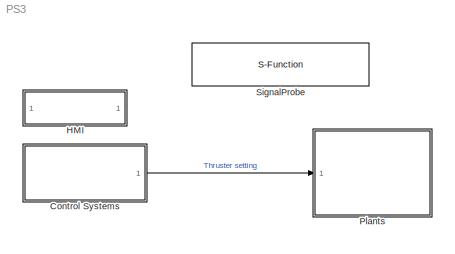
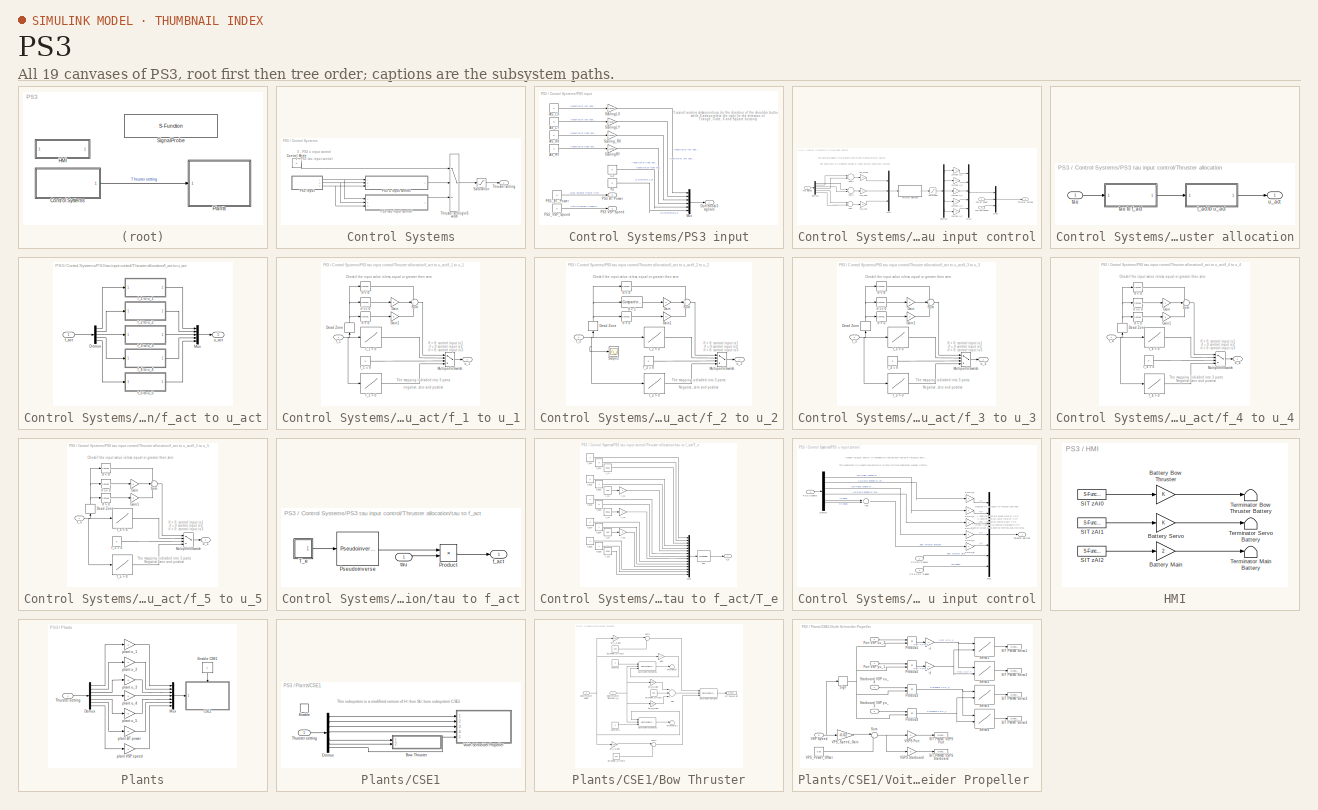
[diagram: thumbnail index - all 19 canvases of the model, root first then tree order]
MODEL PS3
KIND model
BLOCK [SubSystem] Control Systems
  FunctionWithSeparateData = off
  MaskHideContents = off
  MinAlgLoopOccurrences = off
  Opaque = off
  Ports = [0, 1]
  PropExecContextOutsideSubsystem = off
  RTWSystemCode = Auto
  RequestExecContextInheritance = off
BLOCK [Constant] Control Systems/Control Mode
  Value = 0
BLOCK [SubSystem] Control Systems/PS3 input
  FunctionWithSeparateData = off
  MaskHideContents = off
  MinAlgLoopOccurrences = off
  Opaque = off
  Ports = [0, 3]
  PropExecContextOutsideSubsystem = off
  RTWSystemCode = Auto
  RequestExecContextInheritance = off
BLOCK [Constant] Control Systems/PS3 input/AS_LX
  Value = 0
BLOCK [Constant] Control Systems/PS3 input/AS_LY
  Value = 0
BLOCK [Constant] Control Systems/PS3 input/AS_RX
  Value = 0
BLOCK [Constant] Control Systems/PS3 input/AS_RY
  Value = 0
BLOCK [Outport] Control Systems/PS3 input/DuelShock 3 signals
  IconDisplay = Port number
BLOCK [Constant] Control Systems/PS3 input/L2
  Value = 0
BLOCK [Mux] Control Systems/PS3 input/Mux
  DisplayOption = bar
  Inputs = 6
  Ports = [6, 1]
BLOCK [Outport] Control Systems/PS3 input/PS3 BT Power
  IconDisplay = Port number
  Port = 2
BLOCK [Outport] Control Systems/PS3 input/PS3 VSP Speed
  IconDisplay = Port number
  Port = 3
BLOCK [Constant] Control Systems/PS3 input/PS3_BT_Power
  Value = 0
BLOCK [Constant] Control Systems/PS3 input/PS3_VSP_Speed
  Value = 0
BLOCK [Constant] Control Systems/PS3 input/R2
  Value = 0
BLOCK [Gain] Control Systems/PS3 input/ScalingLX
  Gain = 1/32767
  OutDataTypeMode = Inherit via internal rule
  OutDataTypeStr = Inherit: Inherit via internal rule
  ParamDataTypeStr = Inherit: Inherit via internal rule
  ParameterDataTypeMode = Inherit via internal rule
  SaturateOnIntegerOverflow = off
BLOCK [Gain] Control Systems/PS3 input/ScalingLY
  Gain = 1/32767
  OutDataTypeMode = Inherit via internal rule
  OutDataTypeStr = Inherit: Inherit via internal rule
  ParamDataTypeStr = Inherit: Inherit via internal rule
  ParameterDataTypeMode = Inherit via internal rule
  SaturateOnIntegerOverflow = off
BLOCK [Gain] Control Systems/PS3 input/ScalingRY
  Gain = 1/32767
  OutDataTypeMode = Inherit via internal rule
  OutDataTypeStr = Inherit: Inherit via internal rule
  ParamDataTypeStr = Inherit: Inherit via internal rule
  ParameterDataTypeMode = Inherit via internal rule
  SaturateOnIntegerOverflow = off
BLOCK [Gain] Control Systems/PS3 input/Scaling_RX
  Gain = 1/32767
  OutDataTypeMode = Inherit via internal rule
  OutDataTypeStr = Inherit: Inherit via internal rule
  ParamDataTypeStr = Inherit: Inherit via internal rule
  ParameterDataTypeMode = Inherit via internal rule
  SaturateOnIntegerOverflow = off
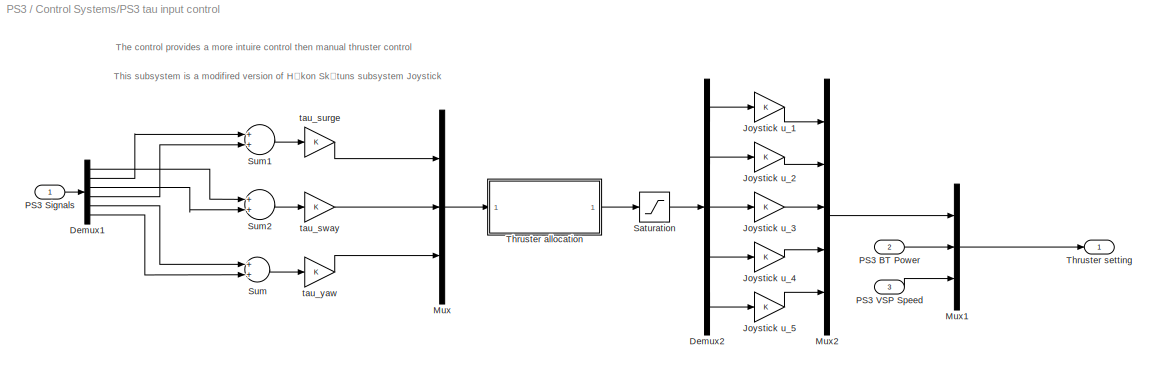
BLOCK [SubSystem] Control Systems/PS3 tau input control
  FunctionWithSeparateData = off
  MaskHideContents = off
  MinAlgLoopOccurrences = on
  Opaque = off
  Ports = [3, 1]
  PropExecContextOutsideSubsystem = off
  RTWSystemCode = Auto
  RequestExecContextInheritance = off
BLOCK [Demux] Control Systems/PS3 tau input control/Demux1
  DisplayOption = bar
  Outputs = 6
  Ports = [1, 6]
BLOCK [Demux] Control Systems/PS3 tau input control/Demux2
  DisplayOption = bar
  Outputs = 5
  Ports = [1, 5]
BLOCK [Gain] Control Systems/PS3 tau input control/Joystick u_1
  OutDataType = fixdt(1, 16)
  OutDataTypeMode = Inherit via internal rule
  OutDataTypeStr = Inherit: Inherit via internal rule
  OutScaling = 2^0
  ParamDataTypeStr = Inherit: Inherit via internal rule
  ParameterDataType = fixdt(1, 16)
  ParameterDataTypeMode = Inherit via internal rule
  ParameterScaling = 2^0
  SaturateOnIntegerOverflow = off
BLOCK [Gain] Control Systems/PS3 tau input control/Joystick u_2
  OutDataType = fixdt(1, 16)
  OutDataTypeMode = Inherit via internal rule
  OutDataTypeStr = Inherit: Inherit via internal rule
  OutScaling = 2^0
  ParamDataTypeStr = Inherit: Inherit via internal rule
  ParameterDataType = fixdt(1, 16)
  ParameterDataTypeMode = Inherit via internal rule
  ParameterScaling = 2^0
  SaturateOnIntegerOverflow = off
BLOCK [Gain] Control Systems/PS3 tau input control/Joystick u_3
  OutDataType = fixdt(1, 16)
  OutDataTypeMode = Inherit via internal rule
  OutDataTypeStr = Inherit: Inherit via internal rule
  OutScaling = 2^0
  ParamDataTypeStr = Inherit: Inherit via internal rule
  ParameterDataType = fixdt(1, 16)
  ParameterDataTypeMode = Inherit via internal rule
  ParameterScaling = 2^0
  SaturateOnIntegerOverflow = off
BLOCK [Gain] Control Systems/PS3 tau input control/Joystick u_4
  OutDataType = fixdt(1, 16)
  OutDataTypeMode = Inherit via internal rule
  OutDataTypeStr = Inherit: Inherit via internal rule
  OutScaling = 2^0
  ParamDataTypeStr = Inherit: Inherit via internal rule
  ParameterDataType = fixdt(1, 16)
  ParameterDataTypeMode = Inherit via internal rule
  ParameterScaling = 2^0
  SaturateOnIntegerOverflow = off
BLOCK [Gain] Control Systems/PS3 tau input control/Joystick u_5
  OutDataType = fixdt(1, 16)
  OutDataTypeMode = Inherit via internal rule
  OutDataTypeStr = Inherit: Inherit via internal rule
  OutScaling = 2^0
  ParamDataTypeStr = Inherit: Inherit via internal rule
  ParameterDataType = fixdt(1, 16)
  ParameterDataTypeMode = Inherit via internal rule
  ParameterScaling = 2^0
  SaturateOnIntegerOverflow = off
BLOCK [Mux] Control Systems/PS3 tau input control/Mux
  DisplayOption = bar
  Inputs = 3
  Ports = [3, 1]
BLOCK [Mux] Control Systems/PS3 tau input control/Mux1
  DisplayOption = bar
  Inputs = 3
  Ports = [3, 1]
BLOCK [Mux] Control Systems/PS3 tau input control/Mux2
  DisplayOption = bar
  Inputs = 5
  Ports = [5, 1]
BLOCK [Inport] Control Systems/PS3 tau input control/PS3 BT Power
  IconDisplay = Port number
  Port = 2
BLOCK [Inport] Control Systems/PS3 tau input control/PS3 Signals
  IconDisplay = Port number
BLOCK [Inport] Control Systems/PS3 tau input control/PS3 VSP Speed
  IconDisplay = Port number
  Port = 3
BLOCK [Saturate] Control Systems/PS3 tau input control/Saturation
  LowerLimit = -1.0
  UpperLimit = 1.0
BLOCK [Sum] Control Systems/PS3 tau input control/Sum
  InputSameDT = off
  OutDataTypeMode = Inherit via internal rule
  OutDataTypeStr = Inherit: Inherit via internal rule
  Ports = [2, 1]
  SaturateOnIntegerOverflow = off
BLOCK [Sum] Control Systems/PS3 tau input control/Sum1
  InputSameDT = off
  OutDataTypeMode = Inherit via internal rule
  OutDataTypeStr = Inherit: Inherit via internal rule
  Ports = [2, 1]
  SaturateOnIntegerOverflow = off
BLOCK [Sum] Control Systems/PS3 tau input control/Sum2
  InputSameDT = off
  OutDataTypeMode = Inherit via internal rule
  OutDataTypeStr = Inherit: Inherit via internal rule
  Ports = [2, 1]
  SaturateOnIntegerOverflow = off
BLOCK [SubSystem] Control Systems/PS3 tau input control/Thruster allocation
  FunctionWithSeparateData = off
  MaskHideContents = off
  MinAlgLoopOccurrences = off
  Opaque = off
  Ports = [1, 1]
  PropExecContextOutsideSubsystem = off
  RTWSystemCode = Auto
  RequestExecContextInheritance = off
BLOCK [SubSystem] Control Systems/PS3 tau input control/Thruster allocation/f_act to u_act
  FunctionWithSeparateData = off
  MaskHideContents = off
  MinAlgLoopOccurrences = off
  Opaque = off
  Ports = [1, 1]
  PropExecContextOutsideSubsystem = off
  RTWSystemCode = Auto
  RequestExecContextInheritance = off
BLOCK [Demux] Control Systems/PS3 tau input control/Thruster allocation/f_act to u_act/Demux
  DisplayOption = bar
  Outputs = 5
  Ports = [1, 5]
BLOCK [Mux] Control Systems/PS3 tau input control/Thruster allocation/f_act to u_act/Mux
  DisplayOption = bar
  Inputs = 5
  Ports = [5, 1]
BLOCK [SubSystem] Control Systems/PS3 tau input control/Thruster allocation/f_act to u_act/f_1 to u_1
  FunctionWithSeparateData = off
  MaskHideContents = off
  MinAlgLoopOccurrences = off
  Opaque = off
  Ports = [1, 1]
  PropExecContextOutsideSubsystem = off
  RTWSystemCode = Auto
  RequestExecContextInheritance = off
BLOCK [DeadZone] Control Systems/PS3 tau input control/Thruster allocation/f_act to u_act/f_1 to u_1/Dead Zone
  LowerValue = -0.001
  UpperValue = 0.001
BLOCK [Gain] Control Systems/PS3 tau input control/Thruster allocation/f_act to u_act/f_1 to u_1/Gain
  Gain = 2
  OutDataType = fixdt(1, 16)
  OutDataTypeMode = Inherit via internal rule
  OutDataTypeStr = Inherit: Inherit via internal rule
  OutScaling = 2^0
  ParamDataTypeStr = Inherit: Inherit via internal rule
  ParameterDataType = fixdt(1, 16)
  ParameterDataTypeMode = Inherit via internal rule
  ParameterScaling = 2^0
  SaturateOnIntegerOverflow = off
BLOCK [Gain] Control Systems/PS3 tau input control/Thruster allocation/f_act to u_act/f_1 to u_1/Gain1
  Gain = 3
  OutDataType = fixdt(1, 16)
  OutDataTypeMode = Inherit via internal rule
  OutDataTypeStr = Inherit: Inherit via internal rule
  OutScaling = 2^0
  ParamDataTypeStr = Inherit: Inherit via internal rule
  ParameterDataType = fixdt(1, 16)
  ParameterDataTypeMode = Inherit via internal rule
  ParameterScaling = 2^0
  SaturateOnIntegerOverflow = off
BLOCK [Reference] Control Systems/PS3 tau input control/Thruster allocation/f_act to u_act/f_1 to u_1/If < 0  REF=simulink/Logic and Bit\nOperations/Compare\nTo Constant
  FunctionWithSeparateData = off
  LogicOutDataTypeMode = uint8
  Ports = [1, 1]
  RTWMemSecDataConstants = Inherit from model
  RTWMemSecDataInternal = Inherit from model
  RTWMemSecDataParameters = Inherit from model
  RTWMemSecFuncExecute = Inherit from model
  RTWMemSecFuncInitTerm = Inherit from model
  ShowPortLabels = FromPortIcon
  SourceBlock = simulink/Logic and Bit\nOperations/Compare\nTo Constant
  SourceType = Compare To Constant
  SystemSampleTime = -1
  ZeroCross = on
  const = 0
  relop = <
BLOCK [Reference] Control Systems/PS3 tau input control/Thruster allocation/f_act to u_act/f_1 to u_1/If > 0  REF=simulink/Logic and Bit\nOperations/Compare\nTo Constant
  FunctionWithSeparateData = off
  LogicOutDataTypeMode = uint8
  Ports = [1, 1]
  RTWMemSecDataConstants = Inherit from model
  RTWMemSecDataInternal = Inherit from model
  RTWMemSecDataParameters = Inherit from model
  RTWMemSecFuncExecute = Inherit from model
  RTWMemSecFuncInitTerm = Inherit from model
  ShowPortLabels = FromPortIcon
  SourceBlock = simulink/Logic and Bit\nOperations/Compare\nTo Constant
  SourceType = Compare To Constant
  SystemSampleTime = -1
  ZeroCross = on
  const = 0
  relop = >
BLOCK [MultiPortSwitch] Control Systems/PS3 tau input control/Thruster allocation/f_act to u_act/f_1 to u_1/Multiport\nSwitch
  InputSameDT = off
  OutDataType = fixdt(1, 16)
  OutScaling = 2^0
  Ports = [4, 1]
  SaturateOnIntegerOverflow = off
BLOCK [Sum] Control Systems/PS3 tau input control/Thruster allocation/f_act to u_act/f_1 to u_1/Sum
  IconShape = round
  InputSameDT = off
  Inputs = +++
  OutDataType = fixdt(1, 16)
  OutDataTypeMode = Inherit via internal rule
  OutDataTypeStr = Inherit: Inherit via internal rule
  OutScaling = 2^0
  Ports = [3, 1]
  SaturateOnIntegerOverflow = off
BLOCK [Inport] Control Systems/PS3 tau input control/Thruster allocation/f_act to u_act/f_1 to u_1/f_1
  IconDisplay = Port number
BLOCK [Lookup] Control Systems/PS3 tau input control/Thruster allocation/f_act to u_act/f_1 to u_1/f_1 < 0
  InputValues = [-1.324\n-1.169\n-0.919\n-0.703\n-0.535\n-0.292\n-0.165\n-0.060\n0]
  LookUpMeth = Interpolation-Use End Values
  OutDataType = fixdt(1, 16)
  OutScaling = 2^0
  SaturateOnIntegerOverflow = off
  Table = [-1.0000\n   -0.9000\n   -0.8000\n   -0.7000\n   -0.6000\n   -0.5000\n   -0.4000\n   -0.3000\n   -0.2089]
BLOCK [Constant] Control Systems/PS3 tau input control/Thruster allocation/f_act to u_act/f_1 to u_1/f_1 = 0
  OutDataType = fixdt(1, 16)
  OutScaling = 2^0
  Value = 0
BLOCK [Lookup] Control Systems/PS3 tau input control/Thruster allocation/f_act to u_act/f_1 to u_1/f_1 > 0
  InputValues = [0\n    0.0510\n    0.1530\n    0.3080\n    0.4800\n    0.6630\n    0.9110\n    1.0570\n    1.2210\n    1.3740]
  LookUpMeth = Interpolation-Use End Values
  OutDataType = fixdt(1, 16)
  OutScaling = 2^0
  SaturateOnIntegerOverflow = off
  Table = [0.0500\n    0.1000\n    0.2000\n    0.3000\n    0.4000\n    0.5000\n    0.6000\n    0.7000\n    0.8000\n    0.9000]
BLOCK [Reference] Control Systems/PS3 tau input control/Thruster allocation/f_act to u_act/f_1 to u_1/if == 0  REF=simulink/Logic and Bit\nOperations/Compare\nTo Zero
  FunctionWithSeparateData = off
  LogicOutDataTypeMode = uint8
  Ports = [1, 1]
  RTWMemSecDataConstants = Inherit from model
  RTWMemSecDataInternal = Inherit from model
  RTWMemSecDataParameters = Inherit from model
  RTWMemSecFuncExecute = Inherit from model
  RTWMemSecFuncInitTerm = Inherit from model
  ShowPortLabels = FromPortIcon
  SourceBlock = simulink/Logic and Bit\nOperations/Compare\nTo Zero
  SourceType = Compare To Zero
  SystemSampleTime = -1
  ZeroCross = on
  relop = ==
BLOCK [Outport] Control Systems/PS3 tau input control/Thruster allocation/f_act to u_act/f_1 to u_1/u_1
  IconDisplay = Port number
BLOCK [SubSystem] Control Systems/PS3 tau input control/Thruster allocation/f_act to u_act/f_2 to u_2
  FunctionWithSeparateData = off
  MaskHideContents = off
  MinAlgLoopOccurrences = off
  Opaque = off
  Ports = [1, 1]
  PropExecContextOutsideSubsystem = off
  RTWSystemCode = Auto
  RequestExecContextInheritance = off
BLOCK [DeadZone] Control Systems/PS3 tau input control/Thruster allocation/f_act to u_act/f_2 to u_2/Dead Zone
  LowerValue = -0.001
  UpperValue = 0.001
BLOCK [Gain] Control Systems/PS3 tau input control/Thruster allocation/f_act to u_act/f_2 to u_2/Gain
  Gain = 2
  OutDataType = fixdt(1, 16)
  OutDataTypeMode = Inherit via internal rule
  OutDataTypeStr = Inherit: Inherit via internal rule
  OutScaling = 2^0
  ParamDataTypeStr = Inherit: Inherit via internal rule
  ParameterDataType = fixdt(1, 16)
  ParameterDataTypeMode = Inherit via internal rule
  ParameterScaling = 2^0
  SaturateOnIntegerOverflow = off
BLOCK [Gain] Control Systems/PS3 tau input control/Thruster allocation/f_act to u_act/f_2 to u_2/Gain1
  Gain = 3
  OutDataType = fixdt(1, 16)
  OutDataTypeMode = Inherit via internal rule
  OutDataTypeStr = Inherit: Inherit via internal rule
  OutScaling = 2^0
  ParamDataTypeStr = Inherit: Inherit via internal rule
  ParameterDataType = fixdt(1, 16)
  ParameterDataTypeMode = Inherit via internal rule
  ParameterScaling = 2^0
  SaturateOnIntegerOverflow = off
BLOCK [Reference] Control Systems/PS3 tau input control/Thruster allocation/f_act to u_act/f_2 to u_2/If < 0  REF=simulink/Logic and Bit\nOperations/Compare\nTo Constant
  FunctionWithSeparateData = off
  LogicOutDataTypeMode = uint8
  Ports = [1, 1]
  RTWMemSecDataConstants = Inherit from model
  RTWMemSecDataInternal = Inherit from model
  RTWMemSecDataParameters = Inherit from model
  RTWMemSecFuncExecute = Inherit from model
  RTWMemSecFuncInitTerm = Inherit from model
  ShowPortLabels = FromPortIcon
  SourceBlock = simulink/Logic and Bit\nOperations/Compare\nTo Constant
  SourceType = Compare To Constant
  SystemSampleTime = -1
  ZeroCross = on
  const = 0
  relop = <
BLOCK [Reference] Control Systems/PS3 tau input control/Thruster allocation/f_act to u_act/f_2 to u_2/If < 1  REF=simulink/Logic and Bit\nOperations/Compare\nTo Constant
  FunctionWithSeparateData = off
  LogicOutDataTypeMode = uint8
  Ports = [1, 1]
  RTWMemSecDataConstants = Inherit from model
  RTWMemSecDataInternal = Inherit from model
  RTWMemSecDataParameters = Inherit from model
  RTWMemSecFuncExecute = Inherit from model
  RTWMemSecFuncInitTerm = Inherit from model
  ShowPortLabels = FromPortIcon
  SourceBlock = simulink/Logic and Bit\nOperations/Compare\nTo Constant
  SourceType = Compare To Constant
  SystemSampleTime = -1
  ZeroCross = on
  const = 0
  relop = ==
BLOCK [Reference] Control Systems/PS3 tau input control/Thruster allocation/f_act to u_act/f_2 to u_2/If > 0  REF=simulink/Logic and Bit\nOperations/Compare\nTo Constant
  FunctionWithSeparateData = off
  LogicOutDataTypeMode = uint8
  Ports = [1, 1]
  RTWMemSecDataConstants = Inherit from model
  RTWMemSecDataInternal = Inherit from model
  RTWMemSecDataParameters = Inherit from model
  RTWMemSecFuncExecute = Inherit from model
  RTWMemSecFuncInitTerm = Inherit from model
  ShowPortLabels = FromPortIcon
  SourceBlock = simulink/Logic and Bit\nOperations/Compare\nTo Constant
  SourceType = Compare To Constant
  SystemSampleTime = -1
  ZeroCross = on
  const = 0
  relop = >
BLOCK [MultiPortSwitch] Control Systems/PS3 tau input control/Thruster allocation/f_act to u_act/f_2 to u_2/Multiport\nSwitch
  InputSameDT = off
  OutDataType = fixdt(1, 16)
  OutScaling = 2^0
  Ports = [4, 1]
  SaturateOnIntegerOverflow = off
BLOCK [Scope] Control Systems/PS3 tau input control/Thruster allocation/f_act to u_act/f_2 to u_2/Scope2
  DataFormat = StructureWithTime
  Floating = off
  NumInputPorts = 1
  Ports = [1]
  SampleTime = 0
  SaveName = ScopeData7
BLOCK [Sum] Control Systems/PS3 tau input control/Thruster allocation/f_act to u_act/f_2 to u_2/Sum
  IconShape = round
  InputSameDT = off
  Inputs = +++
  OutDataType = fixdt(1, 16)
  OutDataTypeMode = Inherit via internal rule
  OutDataTypeStr = Inherit: Inherit via internal rule
  OutScaling = 2^0
  Ports = [3, 1]
  SaturateOnIntegerOverflow = off
BLOCK [Inport] Control Systems/PS3 tau input control/Thruster allocation/f_act to u_act/f_2 to u_2/f_2
  IconDisplay = Port number
BLOCK [Lookup] Control Systems/PS3 tau input control/Thruster allocation/f_act to u_act/f_2 to u_2/f_2 < 0
  InputValues = [-0.766\n-0.649\n-0.522\n-0.411\n-0.323\n-0.246\n-0.156\n-0.075\n-0.018\n-0.006\n0]
  LookUpMeth = Interpolation-Use End Values
  OutDataType = fixdt(1, 16)
  OutScaling = 2^0
  SaturateOnIntegerOverflow = off
  Table = [-1.0000\n   -0.9000\n   -0.8000\n   -0.7000\n   -0.6000\n   -0.5000\n   -0.4000\n   -0.3000\n   -0.2000\n   -0.1000\n   -0.0466]
BLOCK [Constant] Control Systems/PS3 tau input control/Thruster allocation/f_act to u_act/f_2 to u_2/f_2 = 0
  OutDataType = fixdt(1, 16)
  OutScaling = 2^0
  Value = 0
BLOCK [Lookup] Control Systems/PS3 tau input control/Thruster allocation/f_act to u_act/f_2 to u_2/f_2 > 0
  InputValues = [0.000\n0.052\n0.207\n0.331\n0.509\n0.689\n0.829\n0.961\n1.079\n1.120\n]
  LookUpMeth = Interpolation-Use End Values
  OutDataType = fixdt(1, 16)
  OutScaling = 2^0
  SaturateOnIntegerOverflow = off
  Table = [0.1665\n    0.2000\n    0.3000\n    0.4000\n    0.5000\n    0.6000\n    0.7000\n    0.8000\n    0.9000\n    1.0000]
BLOCK [Outport] Control Systems/PS3 tau input control/Thruster allocation/f_act to u_act/f_2 to u_2/u_2
  IconDisplay = Port number
BLOCK [SubSystem] Control Systems/PS3 tau input control/Thruster allocation/f_act to u_act/f_3 to u_3
  FunctionWithSeparateData = off
  MaskHideContents = off
  MinAlgLoopOccurrences = off
  Opaque = off
  Ports = [1, 1]
  PropExecContextOutsideSubsystem = off
  RTWSystemCode = Auto
  RequestExecContextInheritance = off
BLOCK [DeadZone] Control Systems/PS3 tau input control/Thruster allocation/f_act to u_act/f_3 to u_3/Dead Zone
  LowerValue = -0.001
  UpperValue = 0.001
BLOCK [Gain] Control Systems/PS3 tau input control/Thruster allocation/f_act to u_act/f_3 to u_3/Gain
  Gain = 2
  OutDataType = fixdt(1, 16)
  OutDataTypeMode = Inherit via internal rule
  OutDataTypeStr = Inherit: Inherit via internal rule
  OutScaling = 2^0
  ParamDataTypeStr = Inherit: Inherit via internal rule
  ParameterDataType = fixdt(1, 16)
  ParameterDataTypeMode = Inherit via internal rule
  ParameterScaling = 2^0
  SaturateOnIntegerOverflow = off
BLOCK [Gain] Control Systems/PS3 tau input control/Thruster allocation/f_act to u_act/f_3 to u_3/Gain1
  Gain = 3
  OutDataType = fixdt(1, 16)
  OutDataTypeMode = Inherit via internal rule
  OutDataTypeStr = Inherit: Inherit via internal rule
  OutScaling = 2^0
  ParamDataTypeStr = Inherit: Inherit via internal rule
  ParameterDataType = fixdt(1, 16)
  ParameterDataTypeMode = Inherit via internal rule
  ParameterScaling = 2^0
  SaturateOnIntegerOverflow = off
BLOCK [Reference] Control Systems/PS3 tau input control/Thruster allocation/f_act to u_act/f_3 to u_3/If < 0  REF=simulink/Logic and Bit\nOperations/Compare\nTo Constant
  FunctionWithSeparateData = off
  LogicOutDataTypeMode = uint8
  Ports = [1, 1]
  RTWMemSecDataConstants = Inherit from model
  RTWMemSecDataInternal = Inherit from model
  RTWMemSecDataParameters = Inherit from model
  RTWMemSecFuncExecute = Inherit from model
  RTWMemSecFuncInitTerm = Inherit from model
  ShowPortLabels = FromPortIcon
  SourceBlock = simulink/Logic and Bit\nOperations/Compare\nTo Constant
  SourceType = Compare To Constant
  SystemSampleTime = -1
  ZeroCross = on
  const = 0
  relop = <
BLOCK [Reference] Control Systems/PS3 tau input control/Thruster allocation/f_act to u_act/f_3 to u_3/If > 0  REF=simulink/Logic and Bit\nOperations/Compare\nTo Constant
  FunctionWithSeparateData = off
  LogicOutDataTypeMode = uint8
  Ports = [1, 1]
  RTWMemSecDataConstants = Inherit from model
  RTWMemSecDataInternal = Inherit from model
  RTWMemSecDataParameters = Inherit from model
  RTWMemSecFuncExecute = Inherit from model
  RTWMemSecFuncInitTerm = Inherit from model
  ShowPortLabels = FromPortIcon
  SourceBlock = simulink/Logic and Bit\nOperations/Compare\nTo Constant
  SourceType = Compare To Constant
  SystemSampleTime = -1
  ZeroCross = on
  const = 0
  relop = >
BLOCK [MultiPortSwitch] Control Systems/PS3 tau input control/Thruster allocation/f_act to u_act/f_3 to u_3/Multiport\nSwitch
  InputSameDT = off
  OutDataType = fixdt(1, 16)
  OutScaling = 2^0
  Ports = [4, 1]
  SaturateOnIntegerOverflow = off
BLOCK [Sum] Control Systems/PS3 tau input control/Thruster allocation/f_act to u_act/f_3 to u_3/Sum
  IconShape = round
  InputSameDT = off
  Inputs = +++
  OutDataType = fixdt(1, 16)
  OutDataTypeMode = Inherit via internal rule
  OutDataTypeStr = Inherit: Inherit via internal rule
  OutScaling = 2^0
  Ports = [3, 1]
  SaturateOnIntegerOverflow = off
BLOCK [Inport] Control Systems/PS3 tau input control/Thruster allocation/f_act to u_act/f_3 to u_3/f_3
  IconDisplay = Port number
BLOCK [Lookup] Control Systems/PS3 tau input control/Thruster allocation/f_act to u_act/f_3 to u_3/f_3 < 0
  InputValues = [-1.291\n-1.088\n-0.885\n-0.618\n-0.403\n-0.211\n-0.034\n0.000]
  LookUpMeth = Interpolation-Use End Values
  OutDataType = fixdt(1, 16)
  OutScaling = 2^0
  SaturateOnIntegerOverflow = off
  Table = [-0.9000\n   -0.8000\n   -0.7000\n   -0.6000\n   -0.5000\n   -0.4000\n   -0.3000\n   -0.2809]
BLOCK [Constant] Control Systems/PS3 tau input control/Thruster allocation/f_act to u_act/f_3 to u_3/f_3 = 0
  OutDataType = fixdt(1, 16)
  OutScaling = 2^0
  Value = 0
BLOCK [Lookup] Control Systems/PS3 tau input control/Thruster allocation/f_act to u_act/f_3 to u_3/f_3 > 0
  InputValues = [0.000\n0.014\n0.040\n0.147\n0.302\n0.494\n0.680\n0.968\n1.111\n1.289\n1.339]
  LookUpMeth = Interpolation-Use End Values
  OutDataType = fixdt(1, 16)
  OutScaling = 2^0
  SaturateOnIntegerOverflow = off
  Table = [0.0452\n    0.1000\n    0.2000\n    0.3000\n    0.4000\n    0.5000\n    0.6000\n    0.7000\n    0.8000\n    0.9000\n    1.0000\n]
BLOCK [Reference] Control Systems/PS3 tau input control/Thruster allocation/f_act to u_act/f_3 to u_3/if == 0  REF=simulink/Logic and Bit\nOperations/Compare\nTo Zero
  FunctionWithSeparateData = off
  LogicOutDataTypeMode = uint8
  Ports = [1, 1]
  RTWMemSecDataConstants = Inherit from model
  RTWMemSecDataInternal = Inherit from model
  RTWMemSecDataParameters = Inherit from model
  RTWMemSecFuncExecute = Inherit from model
  RTWMemSecFuncInitTerm = Inherit from model
  ShowPortLabels = FromPortIcon
  SourceBlock = simulink/Logic and Bit\nOperations/Compare\nTo Zero
  SourceType = Compare To Zero
  SystemSampleTime = -1
  ZeroCross = on
  relop = ==
BLOCK [Outport] Control Systems/PS3 tau input control/Thruster allocation/f_act to u_act/f_3 to u_3/u_3
  IconDisplay = Port number
BLOCK [SubSystem] Control Systems/PS3 tau input control/Thruster allocation/f_act to u_act/f_4 to u_4
  FunctionWithSeparateData = off
  MaskHideContents = off
  MinAlgLoopOccurrences = off
  Opaque = off
  Ports = [1, 1]
  PropExecContextOutsideSubsystem = off
  RTWSystemCode = Auto
  RequestExecContextInheritance = off
BLOCK [DeadZone] Control Systems/PS3 tau input control/Thruster allocation/f_act to u_act/f_4 to u_4/Dead Zone
  LowerValue = -0.001
  UpperValue = 0.001
BLOCK [Gain] Control Systems/PS3 tau input control/Thruster allocation/f_act to u_act/f_4 to u_4/Gain
  Gain = 2
  OutDataType = fixdt(1, 16)
  OutDataTypeMode = Inherit via internal rule
  OutDataTypeStr = Inherit: Inherit via internal rule
  OutScaling = 2^0
  ParamDataTypeStr = Inherit: Inherit via internal rule
  ParameterDataType = fixdt(1, 16)
  ParameterDataTypeMode = Inherit via internal rule
  ParameterScaling = 2^0
  SaturateOnIntegerOverflow = off
BLOCK [Gain] Control Systems/PS3 tau input control/Thruster allocation/f_act to u_act/f_4 to u_4/Gain1
  Gain = 3
  OutDataType = fixdt(1, 16)
  OutDataTypeMode = Inherit via internal rule
  OutDataTypeStr = Inherit: Inherit via internal rule
  OutScaling = 2^0
  ParamDataTypeStr = Inherit: Inherit via internal rule
  ParameterDataType = fixdt(1, 16)
  ParameterDataTypeMode = Inherit via internal rule
  ParameterScaling = 2^0
  SaturateOnIntegerOverflow = off
BLOCK [Reference] Control Systems/PS3 tau input control/Thruster allocation/f_act to u_act/f_4 to u_4/If < 0  REF=simulink/Logic and Bit\nOperations/Compare\nTo Constant
  FunctionWithSeparateData = off
  LogicOutDataTypeMode = uint8
  Ports = [1, 1]
  RTWMemSecDataConstants = Inherit from model
  RTWMemSecDataInternal = Inherit from model
  RTWMemSecDataParameters = Inherit from model
  RTWMemSecFuncExecute = Inherit from model
  RTWMemSecFuncInitTerm = Inherit from model
  ShowPortLabels = FromPortIcon
  SourceBlock = simulink/Logic and Bit\nOperations/Compare\nTo Constant
  SourceType = Compare To Constant
  SystemSampleTime = -1
  ZeroCross = on
  const = 0
  relop = <
BLOCK [Reference] Control Systems/PS3 tau input control/Thruster allocation/f_act to u_act/f_4 to u_4/If > 0  REF=simulink/Logic and Bit\nOperations/Compare\nTo Constant
  FunctionWithSeparateData = off
  LogicOutDataTypeMode = uint8
  Ports = [1, 1]
  RTWMemSecDataConstants = Inherit from model
  RTWMemSecDataInternal = Inherit from model
  RTWMemSecDataParameters = Inherit from model
  RTWMemSecFuncExecute = Inherit from model
  RTWMemSecFuncInitTerm = Inherit from model
  ShowPortLabels = FromPortIcon
  SourceBlock = simulink/Logic and Bit\nOperations/Compare\nTo Constant
  SourceType = Compare To Constant
  SystemSampleTime = -1
  ZeroCross = on
  const = 0
  relop = >
BLOCK [MultiPortSwitch] Control Systems/PS3 tau input control/Thruster allocation/f_act to u_act/f_4 to u_4/Multiport\nSwitch
  InputSameDT = off
  OutDataType = fixdt(1, 16)
  OutScaling = 2^0
  Ports = [4, 1]
  SaturateOnIntegerOverflow = off
BLOCK [Sum] Control Systems/PS3 tau input control/Thruster allocation/f_act to u_act/f_4 to u_4/Sum
  IconShape = round
  InputSameDT = off
  Inputs = +++
  OutDataType = fixdt(1, 16)
  OutDataTypeMode = Inherit via internal rule
  OutDataTypeStr = Inherit: Inherit via internal rule
  OutScaling = 2^0
  Ports = [3, 1]
  SaturateOnIntegerOverflow = off
BLOCK [Inport] Control Systems/PS3 tau input control/Thruster allocation/f_act to u_act/f_4 to u_4/f_4
  IconDisplay = Port number
BLOCK [Lookup] Control Systems/PS3 tau input control/Thruster allocation/f_act to u_act/f_4 to u_4/f_4 < 0
  InputValues = [-1.249\n-1.225\n-1.094\n-0.896\n-0.696\n-0.502\n-0.314\n-0.169\n-0.042\n0.000]
  LookUpMeth = Interpolation-Use End Values
  OutDataType = fixdt(1, 16)
  OutScaling = 2^0
  SaturateOnIntegerOverflow = off
  Table = [-0.9000\n   -0.8000\n   -0.7000\n   -0.6000\n   -0.5000\n   -0.4000\n   -0.3000\n   -0.2000\n   -0.1000\n   -0.0674]
BLOCK [Constant] Control Systems/PS3 tau input control/Thruster allocation/f_act to u_act/f_4 to u_4/f_4 = 0
  OutDataType = fixdt(1, 16)
  OutScaling = 2^0
  Value = 0
BLOCK [Lookup] Control Systems/PS3 tau input control/Thruster allocation/f_act to u_act/f_4 to u_4/f_4 > 0
  InputValues = [0.000\n0.063\n0.107\n0.274\n0.441\n0.599\n0.731]
  LookUpMeth = Interpolation-Use End Values
  OutDataType = fixdt(1, 16)
  OutScaling = 2^0
  SaturateOnIntegerOverflow = off
  Table = [0.3588\n    0.5000\n    0.6000\n    0.7000\n    0.8000\n    0.9000\n    1.0000]
BLOCK [Reference] Control Systems/PS3 tau input control/Thruster allocation/f_act to u_act/f_4 to u_4/if == 0  REF=simulink/Logic and Bit\nOperations/Compare\nTo Zero
  FunctionWithSeparateData = off
  LogicOutDataTypeMode = uint8
  Ports = [1, 1]
  RTWMemSecDataConstants = Inherit from model
  RTWMemSecDataInternal = Inherit from model
  RTWMemSecDataParameters = Inherit from model
  RTWMemSecFuncExecute = Inherit from model
  RTWMemSecFuncInitTerm = Inherit from model
  ShowPortLabels = FromPortIcon
  SourceBlock = simulink/Logic and Bit\nOperations/Compare\nTo Zero
  SourceType = Compare To Zero
  SystemSampleTime = -1
  ZeroCross = on
  relop = ==
BLOCK [Outport] Control Systems/PS3 tau input control/Thruster allocation/f_act to u_act/f_4 to u_4/u_4
  IconDisplay = Port number
BLOCK [SubSystem] Control Systems/PS3 tau input control/Thruster allocation/f_act to u_act/f_5 to u_5
  FunctionWithSeparateData = off
  MaskHideContents = off
  MinAlgLoopOccurrences = off
  Opaque = off
  Ports = [1, 1]
  PropExecContextOutsideSubsystem = off
  RTWSystemCode = Auto
  RequestExecContextInheritance = off
BLOCK [DeadZone] Control Systems/PS3 tau input control/Thruster allocation/f_act to u_act/f_5 to u_5/Dead Zone
  LowerValue = -0.001
  UpperValue = 0.001
BLOCK [Gain] Control Systems/PS3 tau input control/Thruster allocation/f_act to u_act/f_5 to u_5/Gain
  Gain = 2
  OutDataType = fixdt(1, 16)
  OutDataTypeMode = Inherit via internal rule
  OutDataTypeStr = Inherit: Inherit via internal rule
  OutScaling = 2^0
  ParamDataTypeStr = Inherit: Inherit via internal rule
  ParameterDataType = fixdt(1, 16)
  ParameterDataTypeMode = Inherit via internal rule
  ParameterScaling = 2^0
  SaturateOnIntegerOverflow = off
BLOCK [Gain] Control Systems/PS3 tau input control/Thruster allocation/f_act to u_act/f_5 to u_5/Gain1
  Gain = 3
  OutDataType = fixdt(1, 16)
  OutDataTypeMode = Inherit via internal rule
  OutDataTypeStr = Inherit: Inherit via internal rule
  OutScaling = 2^0
  ParamDataTypeStr = Inherit: Inherit via internal rule
  ParameterDataType = fixdt(1, 16)
  ParameterDataTypeMode = Inherit via internal rule
  ParameterScaling = 2^0
  SaturateOnIntegerOverflow = off
BLOCK [Reference] Control Systems/PS3 tau input control/Thruster allocation/f_act to u_act/f_5 to u_5/If < 0  REF=simulink/Logic and Bit\nOperations/Compare\nTo Constant
  FunctionWithSeparateData = off
  LogicOutDataTypeMode = uint8
  Ports = [1, 1]
  RTWMemSecDataConstants = Inherit from model
  RTWMemSecDataInternal = Inherit from model
  RTWMemSecDataParameters = Inherit from model
  RTWMemSecFuncExecute = Inherit from model
  RTWMemSecFuncInitTerm = Inherit from model
  ShowPortLabels = FromPortIcon
  SourceBlock = simulink/Logic and Bit\nOperations/Compare\nTo Constant
  SourceType = Compare To Constant
  SystemSampleTime = -1
  ZeroCross = on
  const = 0
  relop = <
BLOCK [Reference] Control Systems/PS3 tau input control/Thruster allocation/f_act to u_act/f_5 to u_5/If > 0  REF=simulink/Logic and Bit\nOperations/Compare\nTo Constant
  FunctionWithSeparateData = off
  LogicOutDataTypeMode = uint8
  Ports = [1, 1]
  RTWMemSecDataConstants = Inherit from model
  RTWMemSecDataInternal = Inherit from model
  RTWMemSecDataParameters = Inherit from model
  RTWMemSecFuncExecute = Inherit from model
  RTWMemSecFuncInitTerm = Inherit from model
  ShowPortLabels = FromPortIcon
  SourceBlock = simulink/Logic and Bit\nOperations/Compare\nTo Constant
  SourceType = Compare To Constant
  SystemSampleTime = -1
  ZeroCross = on
  const = 0
  relop = >
BLOCK [MultiPortSwitch] Control Systems/PS3 tau input control/Thruster allocation/f_act to u_act/f_5 to u_5/Multiport\nSwitch
  InputSameDT = off
  OutDataType = fixdt(1, 16)
  OutScaling = 2^0
  Ports = [4, 1]
  SaturateOnIntegerOverflow = off
BLOCK [Sum] Control Systems/PS3 tau input control/Thruster allocation/f_act to u_act/f_5 to u_5/Sum
  IconShape = round
  InputSameDT = off
  Inputs = +++
  OutDataType = fixdt(1, 16)
  OutDataTypeMode = Inherit via internal rule
  OutDataTypeStr = Inherit: Inherit via internal rule
  OutScaling = 2^0
  Ports = [3, 1]
  SaturateOnIntegerOverflow = off
BLOCK [Inport] Control Systems/PS3 tau input control/Thruster allocation/f_act to u_act/f_5 to u_5/f_5
  IconDisplay = Port number
BLOCK [Lookup] Control Systems/PS3 tau input control/Thruster allocation/f_act to u_act/f_5 to u_5/f_5 < 0
  InputValues = [-1.2630\n   -1.0309\n   -0.3808]
  LookUpMeth = Interpolation-Use End Values
  OutDataType = fixdt(1, 16)
  OutScaling = 2^0
  SaturateOnIntegerOverflow = off
  Table = [-0.3000\n   -0.2000\n   -0.1000]
BLOCK [Constant] Control Systems/PS3 tau input control/Thruster allocation/f_act to u_act/f_5 to u_5/f_5 = 0
  OutDataType = fixdt(1, 16)
  OutScaling = 2^0
  Value = 0
BLOCK [Lookup] Control Systems/PS3 tau input control/Thruster allocation/f_act to u_act/f_5 to u_5/f_5 > 0
  InputValues = [0.3480\n    0.8290\n    1.0930]
  LookUpMeth = Interpolation-Use End Values
  OutDataType = fixdt(1, 16)
  OutScaling = 2^0
  SaturateOnIntegerOverflow = off
  Table = [0.1000\n    0.2000\n    0.3000]
BLOCK [Reference] Control Systems/PS3 tau input control/Thruster allocation/f_act to u_act/f_5 to u_5/if == 0  REF=simulink/Logic and Bit\nOperations/Compare\nTo Zero
  FunctionWithSeparateData = off
  LogicOutDataTypeMode = uint8
  Ports = [1, 1]
  RTWMemSecDataConstants = Inherit from model
  RTWMemSecDataInternal = Inherit from model
  RTWMemSecDataParameters = Inherit from model
  RTWMemSecFuncExecute = Inherit from model
  RTWMemSecFuncInitTerm = Inherit from model
  ShowPortLabels = FromPortIcon
  SourceBlock = simulink/Logic and Bit\nOperations/Compare\nTo Zero
  SourceType = Compare To Zero
  SystemSampleTime = -1
  ZeroCross = on
  relop = ==
BLOCK [Outport] Control Systems/PS3 tau input control/Thruster allocation/f_act to u_act/f_5 to u_5/u_5
  IconDisplay = Port number
BLOCK [Inport] Control Systems/PS3 tau input control/Thruster allocation/f_act to u_act/f_act
  IconDisplay = Port number
BLOCK [Outport] Control Systems/PS3 tau input control/Thruster allocation/f_act to u_act/u_act
  IconDisplay = Port number
BLOCK [Inport] Control Systems/PS3 tau input control/Thruster allocation/tau
  IconDisplay = Port number
BLOCK [SubSystem] Control Systems/PS3 tau input control/Thruster allocation/tau to f_act
  FunctionWithSeparateData = off
  MaskHideContents = off
  MinAlgLoopOccurrences = off
  Opaque = off
  Ports = [1, 1]
  PropExecContextOutsideSubsystem = off
  RTWSystemCode = Auto
  RequestExecContextInheritance = off
BLOCK [Product] Control Systems/PS3 tau input control/Thruster allocation/tau to f_act/Product
  InputSameDT = off
  Multiplication = Matrix(*)
  OutDataType = fixdt(1, 16)
  OutDataTypeMode = Inherit via internal rule
  OutDataTypeStr = Inherit: Inherit via internal rule
  OutScaling = 2^0
  Ports = [2, 1]
  SaturateOnIntegerOverflow = off
BLOCK [Reference] Control Systems/PS3 tau input control/Thruster allocation/tau to f_act/Pseudoinverse  REF=dspinverses/Pseudoinverse
  Ports = [1, 1]
  SourceBlock = dspinverses/Pseudoinverse
  SourceType = Pseudoinverse
  wanterr = off
BLOCK [SubSystem] Control Systems/PS3 tau input control/Thruster allocation/tau to f_act/T_e
  FunctionWithSeparateData = off
  MaskHideContents = off
  MinAlgLoopOccurrences = off
  Opaque = off
  Ports = [0, 1]
  PropExecContextOutsideSubsystem = off
  RTWSystemCode = Auto
  RequestExecContextInheritance = off
BLOCK [Gain] Control Systems/PS3 tau input control/Thruster allocation/tau to f_act/T_e/-l_x1
  Gain = -1
  OutDataTypeMode = Inherit via internal rule
  OutDataTypeStr = Inherit: Inherit via internal rule
  ParamDataTypeStr = Inherit: Inherit via internal rule
  ParameterDataTypeMode = Inherit via internal rule
  SaturateOnIntegerOverflow = off
BLOCK [Gain] Control Systems/PS3 tau input control/Thruster allocation/tau to f_act/T_e/-l_x2
  Gain = -1
  OutDataTypeMode = Inherit via internal rule
  OutDataTypeStr = Inherit: Inherit via internal rule
  ParamDataTypeStr = Inherit: Inherit via internal rule
  ParameterDataTypeMode = Inherit via internal rule
  SaturateOnIntegerOverflow = off
BLOCK [Gain] Control Systems/PS3 tau input control/Thruster allocation/tau to f_act/T_e/-l_y2
  Gain = -1
  OutDataTypeMode = Inherit via internal rule
  OutDataTypeStr = Inherit: Inherit via internal rule
  ParamDataTypeStr = Inherit: Inherit via internal rule
  ParameterDataTypeMode = Inherit via internal rule
  SaturateOnIntegerOverflow = off
BLOCK [Reshape] Control Systems/PS3 tau input control/Thruster allocation/tau to f_act/T_e/3x5
  OutputDimensionality = Customize
  OutputDimensions = [3,5]
  Ports = [1, 1]
BLOCK [Mux] Control Systems/PS3 tau input control/Thruster allocation/tau to f_act/T_e/Mux
  DisplayOption = bar
  Inputs = 15
  Ports = [15, 1]
BLOCK [Outport] Control Systems/PS3 tau input control/Thruster allocation/tau to f_act/T_e/T_e
  IconDisplay = Port number
BLOCK [Constant] Control Systems/PS3 tau input control/Thruster allocation/tau to f_act/T_e/T_e11
BLOCK [Constant] Control Systems/PS3 tau input control/Thruster allocation/tau to f_act/T_e/T_e12
  Value = 0
BLOCK [Constant] Control Systems/PS3 tau input control/Thruster allocation/tau to f_act/T_e/T_e13
BLOCK [Constant] Control Systems/PS3 tau input control/Thruster allocation/tau to f_act/T_e/T_e14
  Value = 0
BLOCK [Constant] Control Systems/PS3 tau input control/Thruster allocation/tau to f_act/T_e/T_e15
  Value = 0
BLOCK [Constant] Control Systems/PS3 tau input control/Thruster allocation/tau to f_act/T_e/T_e21
  Value = 0
BLOCK [Constant] Control Systems/PS3 tau input control/Thruster allocation/tau to f_act/T_e/T_e22
BLOCK [Constant] Control Systems/PS3 tau input control/Thruster allocation/tau to f_act/T_e/T_e23
  Value = 0
BLOCK [Constant] Control Systems/PS3 tau input control/Thruster allocation/tau to f_act/T_e/T_e24
BLOCK [Constant] Control Systems/PS3 tau input control/Thruster allocation/tau to f_act/T_e/T_e25
BLOCK [Constant] Control Systems/PS3 tau input control/Thruster allocation/tau to f_act/T_e/l_x1
  Value = 0.45
BLOCK [Constant] Control Systems/PS3 tau input control/Thruster allocation/tau to f_act/T_e/l_x2
  Value = 0.45
BLOCK [Constant] Control Systems/PS3 tau input control/Thruster allocation/tau to f_act/T_e/l_x3
  Value = 0.385
BLOCK [Constant] Control Systems/PS3 tau input control/Thruster allocation/tau to f_act/T_e/l_y1
  Value = 0.055
BLOCK [Constant] Control Systems/PS3 tau input control/Thruster allocation/tau to f_act/T_e/l_y2
  Value = 0.055
BLOCK [Outport] Control Systems/PS3 tau input control/Thruster allocation/tau to f_act/f_act
  IconDisplay = Port number
BLOCK [Inport] Control Systems/PS3 tau input control/Thruster allocation/tau to f_act/tau
  IconDisplay = Port number
BLOCK [Outport] Control Systems/PS3 tau input control/Thruster allocation/u_act
  IconDisplay = Port number
BLOCK [Outport] Control Systems/PS3 tau input control/Thruster setting
  IconDisplay = Port number
BLOCK [Gain] Control Systems/PS3 tau input control/tau_surge
  OutDataTypeMode = Inherit via internal rule
  OutDataTypeStr = Inherit: Inherit via internal rule
  ParamDataTypeStr = Inherit: Inherit via internal rule
  ParameterDataTypeMode = Inherit via internal rule
  SaturateOnIntegerOverflow = off
BLOCK [Gain] Control Systems/PS3 tau input control/tau_sway
  OutDataTypeMode = Inherit via internal rule
  OutDataTypeStr = Inherit: Inherit via internal rule
  ParamDataTypeStr = Inherit: Inherit via internal rule
  ParameterDataTypeMode = Inherit via internal rule
  SaturateOnIntegerOverflow = off
BLOCK [Gain] Control Systems/PS3 tau input control/tau_yaw
  OutDataTypeMode = Inherit via internal rule
  OutDataTypeStr = Inherit: Inherit via internal rule
  ParamDataTypeStr = Inherit: Inherit via internal rule
  ParameterDataTypeMode = Inherit via internal rule
  SaturateOnIntegerOverflow = off
BLOCK [SubSystem] Control Systems/PS3 u input control
  FunctionWithSeparateData = off
  MaskHideContents = off
  MinAlgLoopOccurrences = on
  Opaque = off
  Ports = [3, 1]
  PropExecContextOutsideSubsystem = off
  RTWSystemCode = Auto
  RequestExecContextInheritance = off
BLOCK [Sum] Control Systems/PS3 u input control/Add
  IconShape = round
  InputSameDT = off
  Inputs = |++
  OutDataTypeMode = Inherit via internal rule
  OutDataTypeStr = Inherit: Inherit via internal rule
  Ports = [2, 1]
  SaturateOnIntegerOverflow = off
BLOCK [Demux] Control Systems/PS3 u input control/Demux
  DisplayOption = bar
  Outputs = 6
  Ports = [1, 6]
BLOCK [Mux] Control Systems/PS3 u input control/Mux
  DisplayOption = bar
  Inputs = 7
  Ports = [7, 1]
BLOCK [Inport] Control Systems/PS3 u input control/PS3 BT Power
  IconDisplay = Port number
  Port = 2
BLOCK [Inport] Control Systems/PS3 u input control/PS3 Signals
  IconDisplay = Port number
BLOCK [Inport] Control Systems/PS3 u input control/PS3 VSP Speed
  IconDisplay = Port number
  Port = 3
BLOCK [Gain] Control Systems/PS3 u input control/PS3 u_1
  OutDataType = fixdt(1, 16)
  OutDataTypeMode = Inherit via internal rule
  OutDataTypeStr = Inherit: Inherit via internal rule
  OutScaling = 2^0
  ParamDataTypeStr = Inherit: Inherit via internal rule
  ParameterDataType = fixdt(1, 16)
  ParameterDataTypeMode = Inherit via internal rule
  ParameterScaling = 2^0
  SaturateOnIntegerOverflow = off
BLOCK [Gain] Control Systems/PS3 u input control/PS3 u_2
  OutDataType = fixdt(1, 16)
  OutDataTypeMode = Inherit via internal rule
  OutDataTypeStr = Inherit: Inherit via internal rule
  OutScaling = 2^0
  ParamDataTypeStr = Inherit: Inherit via internal rule
  ParameterDataType = fixdt(1, 16)
  ParameterDataTypeMode = Inherit via internal rule
  ParameterScaling = 2^0
  SaturateOnIntegerOverflow = off
BLOCK [Gain] Control Systems/PS3 u input control/PS3 u_3
  OutDataType = fixdt(1, 16)
  OutDataTypeMode = Inherit via internal rule
  OutDataTypeStr = Inherit: Inherit via internal rule
  OutScaling = 2^0
  ParamDataTypeStr = Inherit: Inherit via internal rule
  ParameterDataType = fixdt(1, 16)
  ParameterDataTypeMode = Inherit via internal rule
  ParameterScaling = 2^0
  SaturateOnIntegerOverflow = off
BLOCK [Gain] Control Systems/PS3 u input control/PS3 u_4
  OutDataType = fixdt(1, 16)
  OutDataTypeMode = Inherit via internal rule
  OutDataTypeStr = Inherit: Inherit via internal rule
  OutScaling = 2^0
  ParamDataTypeStr = Inherit: Inherit via internal rule
  ParameterDataType = fixdt(1, 16)
  ParameterDataTypeMode = Inherit via internal rule
  ParameterScaling = 2^0
  SaturateOnIntegerOverflow = off
BLOCK [Gain] Control Systems/PS3 u input control/PS3 u_5
  OutDataType = fixdt(1, 16)
  OutDataTypeMode = Inherit via internal rule
  OutDataTypeStr = Inherit: Inherit via internal rule
  OutScaling = 2^0
  ParamDataTypeStr = Inherit: Inherit via internal rule
  ParameterDataType = fixdt(1, 16)
  ParameterDataTypeMode = Inherit via internal rule
  ParameterScaling = 2^0
  SaturateOnIntegerOverflow = off
BLOCK [Outport] Control Systems/PS3 u input control/Thruster setting
  IconDisplay = Port number
BLOCK [Saturate] Control Systems/Saturation
  LowerLimit = -1.0
  UpperLimit = 1.0
BLOCK [Outport] Control Systems/Thruster setting
  IconDisplay = Port number
  PortDimensions = 7
BLOCK [MultiPortSwitch] Control Systems/Thruster setting\nSwitch
  InputSameDT = off
  Inputs = 2
  Ports = [3, 1]
  SaturateOnIntegerOverflow = off
  zeroidx = on
BLOCK [SubSystem] HMI
  FunctionWithSeparateData = off
  MaskHideContents = off
  MinAlgLoopOccurrences = off
  Opaque = off
  Ports = []
  PropExecContextOutsideSubsystem = off
  RTWSystemCode = Auto
  RequestExecContextInheritance = off
BLOCK [Gain] HMI/Battery Bow Thruster
  OutDataType = fixdt(1, 16)
  OutDataTypeMode = Inherit via internal rule
  OutDataTypeStr = Inherit: Inherit via internal rule
  OutScaling = 2^0
  ParamDataTypeStr = Inherit: Inherit via internal rule
  ParameterDataType = fixdt(1, 16)
  ParameterDataTypeMode = Inherit via internal rule
  ParameterScaling = 2^0
  SaturateOnIntegerOverflow = off
BLOCK [Gain] HMI/Battery Main
  Gain = 2
  OutDataType = fixdt(1, 16)
  OutDataTypeMode = Inherit via internal rule
  OutDataTypeStr = Inherit: Inherit via internal rule
  OutScaling = 2^0
  ParamDataTypeStr = Inherit: Inherit via internal rule
  ParameterDataType = fixdt(1, 16)
  ParameterDataTypeMode = Inherit via internal rule
  ParameterScaling = 2^0
  SaturateOnIntegerOverflow = off
BLOCK [Gain] HMI/Battery Servo
  OutDataType = fixdt(1, 16)
  OutDataTypeMode = Inherit via internal rule
  OutDataTypeStr = Inherit: Inherit via internal rule
  OutScaling = 2^0
  ParamDataTypeStr = Inherit: Inherit via internal rule
  ParameterDataType = fixdt(1, 16)
  ParameterDataTypeMode = Inherit via internal rule
  ParameterScaling = 2^0
  SaturateOnIntegerOverflow = off
BLOCK [S-Function] HMI/SIT zAI0
  CopyFcn = NI_SIT_IO_callbacks(1);
  DeleteFcn = NI_SIT_IO_callbacks(2);
  EnableBusSupport = off
  FunctionName = NI_SIT_IO
  MaskCallbackString = NI_SIT_IO_callbacks(3);|||NI_SIT_IO_callbacks(4);||
  MaskDescription = Use this inport on any level of nested subsystems to allow the LabVIEW Simulation Interface Toolkit to map hardware to it.
  MaskDisplay = patch([-x x], [-y y], [.90980 .81960 .32156]);\nplot([0 -x x 0], [rad -y y rad]);\nfprintf('SIT%d', portnum);
  MaskEnableString = on,on,on,on,on,on
  MaskIconFrame = off
  MaskIconOpaque = on
  MaskIconRotate = none
  MaskIconUnits = autoscale
  MaskInitialization = NI_SIT_IO_init;
  MaskPortRotate = default
  MaskPromptString = Port number:|Port dimensions (-1 for dynamically sized):|Sample time (-1 for inherited):|Data type:|Signal type:|Block type:
  MaskStyleString = edit,edit,edit,popup(auto|double|single|int8|uint8|int16|uint16|int32|uint32|boolean),popup(auto|real|complex),edit
  MaskTabNameString = Parameters,Parameters,Parameters,Parameters,Parameters,Parameters
  MaskToolTipString = on,on,on,on,on,on
  MaskTunableValueString = off,off,off,off,off,off
  MaskType = SIT Inport
  MaskValueString = 1|-1|-1|auto|auto|1
  MaskVarAliasString = ,,,,,
  MaskVariables = portnum=@1;width=@2;stime=@3;dtype=@4;stype=@5;btype=@6;
  MaskVisibilityString = on,on,on,on,on,off
  Parameters = width dtype portnum stime stype btype
  Ports = [0, 1]
  Priority = 1
BLOCK [S-Function] HMI/SIT zAI1
  CopyFcn = NI_SIT_IO_callbacks(1);
  DeleteFcn = NI_SIT_IO_callbacks(2);
  EnableBusSupport = off
  FunctionName = NI_SIT_IO
  MaskCallbackString = NI_SIT_IO_callbacks(3);|||NI_SIT_IO_callbacks(4);||
  MaskDescription = Use this inport on any level of nested subsystems to allow the LabVIEW Simulation Interface Toolkit to map hardware to it.
  MaskDisplay = patch([-x x], [-y y], [.90980 .81960 .32156]);\nplot([0 -x x 0], [rad -y y rad]);\nfprintf('SIT%d', portnum);
  MaskEnableString = on,on,on,on,on,on
  MaskIconFrame = off
  MaskIconOpaque = on
  MaskIconRotate = none
  MaskIconUnits = autoscale
  MaskInitialization = NI_SIT_IO_init;
  MaskPortRotate = default
  MaskPromptString = Port number:|Port dimensions (-1 for dynamically sized):|Sample time (-1 for inherited):|Data type:|Signal type:|Block type:
  MaskStyleString = edit,edit,edit,popup(auto|double|single|int8|uint8|int16|uint16|int32|uint32|boolean),popup(auto|real|complex),edit
  MaskTabNameString = Parameters,Parameters,Parameters,Parameters,Parameters,Parameters
  MaskToolTipString = on,on,on,on,on,on
  MaskTunableValueString = off,off,off,off,off,off
  MaskType = SIT Inport
  MaskValueString = 2|-1|-1|auto|auto|1
  MaskVarAliasString = ,,,,,
  MaskVariables = portnum=@1;width=@2;stime=@3;dtype=@4;stype=@5;btype=@6;
  MaskVisibilityString = on,on,on,on,on,off
  Parameters = width dtype portnum stime stype btype
  Ports = [0, 1]
  Priority = 2
BLOCK [S-Function] HMI/SIT zAI2
  CopyFcn = NI_SIT_IO_callbacks(1);
  DeleteFcn = NI_SIT_IO_callbacks(2);
  EnableBusSupport = off
  FunctionName = NI_SIT_IO
  MaskCallbackString = NI_SIT_IO_callbacks(3);|||NI_SIT_IO_callbacks(4);||
  MaskDescription = Use this inport on any level of nested subsystems to allow the LabVIEW Simulation Interface Toolkit to map hardware to it.
  MaskDisplay = patch([-x x], [-y y], [.90980 .81960 .32156]);\nplot([0 -x x 0], [rad -y y rad]);\nfprintf('SIT%d', portnum);
  MaskEnableString = on,on,on,on,on,on
  MaskIconFrame = off
  MaskIconOpaque = on
  MaskIconRotate = none
  MaskIconUnits = autoscale
  MaskInitialization = NI_SIT_IO_init;
  MaskPortRotate = default
  MaskPromptString = Port number:|Port dimensions (-1 for dynamically sized):|Sample time (-1 for inherited):|Data type:|Signal type:|Block type:
  MaskStyleString = edit,edit,edit,popup(auto|double|single|int8|uint8|int16|uint16|int32|uint32|boolean),popup(auto|real|complex),edit
  MaskTabNameString = Parameters,Parameters,Parameters,Parameters,Parameters,Parameters
  MaskToolTipString = on,on,on,on,on,on
  MaskTunableValueString = off,off,off,off,off,off
  MaskType = SIT Inport
  MaskValueString = 3|-1|-1|auto|auto|1
  MaskVarAliasString = ,,,,,
  MaskVariables = portnum=@1;width=@2;stime=@3;dtype=@4;stype=@5;btype=@6;
  MaskVisibilityString = on,on,on,on,on,off
  Parameters = width dtype portnum stime stype btype
  Ports = [0, 1]
  Priority = 3
BLOCK [Terminator] HMI/Terminator Bow Thruster Battery
BLOCK [Terminator] HMI/Terminator Main Battery
BLOCK [Terminator] HMI/Terminator Servo Battery
BLOCK [SubSystem] Plants
  FunctionWithSeparateData = off
  MaskHideContents = off
  MinAlgLoopOccurrences = off
  Opaque = off
  Ports = [1]
  PropExecContextOutsideSubsystem = off
  RTWSystemCode = Auto
  RequestExecContextInheritance = off
BLOCK [SubSystem] Plants/CSE1
  FunctionWithSeparateData = off
  MaskHideContents = off
  MinAlgLoopOccurrences = off
  Opaque = off
  Ports = [1, 0, 1]
  PropExecContextOutsideSubsystem = off
  RTWSystemCode = Auto
  RequestExecContextInheritance = off
BLOCK [SubSystem] Plants/CSE1/Bow Thruster
  FunctionWithSeparateData = off
  MaskHideContents = off
  MinAlgLoopOccurrences = off
  Opaque = off
  Ports = [2]
  PropExecContextOutsideSubsystem = off
  RTWSystemCode = Auto
  RequestExecContextInheritance = off
BLOCK [Sum] Plants/CSE1/Bow Thruster/Add
  InputSameDT = off
  Inputs = +++
  OutDataTypeMode = Inherit via internal rule
  OutDataTypeStr = Inherit: Inherit via internal rule
  Ports = [3, 1]
  SaturateOnIntegerOverflow = off
BLOCK [Gain] Plants/CSE1/Bow Thruster/BT_D_Gain1
  Gain = 0.02
  OutDataTypeMode = Inherit via internal rule
  OutDataTypeStr = Inherit: Inherit via internal rule
  ParamDataTypeStr = Inherit: Inherit via internal rule
  ParameterDataTypeMode = Inherit via internal rule
  SaturateOnIntegerOverflow = off
BLOCK [Gain] Plants/CSE1/Bow Thruster/BT_D_Gain2
  Gain = 0.02
  OutDataTypeMode = Inherit via internal rule
  OutDataTypeStr = Inherit: Inherit via internal rule
  ParamDataTypeStr = Inherit: Inherit via internal rule
  ParameterDataTypeMode = Inherit via internal rule
  SaturateOnIntegerOverflow = off
BLOCK [Gain] Plants/CSE1/Bow Thruster/BT_L_Gain1
  Gain = 0.02
  OutDataTypeMode = Inherit via internal rule
  OutDataTypeStr = Inherit: Inherit via internal rule
  ParamDataTypeStr = Inherit: Inherit via internal rule
  ParameterDataTypeMode = Inherit via internal rule
  SaturateOnIntegerOverflow = off
BLOCK [Gain] Plants/CSE1/Bow Thruster/BT_L_Gain2
  Gain = -0.02
  OutDataTypeMode = Inherit via internal rule
  OutDataTypeStr = Inherit: Inherit via internal rule
  ParamDataTypeStr = Inherit: Inherit via internal rule
  ParameterDataTypeMode = Inherit via internal rule
  SaturateOnIntegerOverflow = off
BLOCK [Constant] Plants/CSE1/Bow Thruster/BT_Power_Offset1
  Value = 0.05
BLOCK [Constant] Plants/CSE1/Bow Thruster/BT_Power_Offset2
  Value = 0.05
BLOCK [Constant] Plants/CSE1/Bow Thruster/BT_Power_Offset3
  Value = 0.05
BLOCK [Inport] Plants/CSE1/Bow Thruster/Bow Thruster Direction u_5
  IconDisplay = Port number
BLOCK [Inport] Plants/CSE1/Bow Thruster/Bow Thruster Power
  IconDisplay = Port number
  Port = 2
BLOCK [Constant] Plants/CSE1/Bow Thruster/Constant
  OutDataType = fixdt(1, 16)
  OutScaling = 2^0
  Value = 0
BLOCK [Constant] Plants/CSE1/Bow Thruster/Constant1
  OutDataType = fixdt(1, 16)
  OutScaling = 2^0
  Value = 0
BLOCK [Gain] Plants/CSE1/Bow Thruster/Neg
  Gain = -1
  OutDataType = fixdt(1, 16)
  OutDataTypeMode = Inherit via internal rule
  OutDataTypeStr = Inherit: Inherit via internal rule
  OutScaling = 2^0
  ParamDataTypeStr = Inherit: Inherit via internal rule
  ParameterDataType = fixdt(1, 16)
  ParameterDataTypeMode = Inherit via internal rule
  ParameterScaling = 2^0
  SaturateOnIntegerOverflow = off
BLOCK [S-Function] Plants/CSE1/Bow Thruster/SIT PWM0 BT
  CopyFcn = NI_SIT_IO_callbacks(1);
  DeleteFcn = NI_SIT_IO_callbacks(2);
  EnableBusSupport = off
  FunctionName = NI_SIT_IO
  MaskCallbackString = NI_SIT_IO_callbacks(3);|||NI_SIT_IO_callbacks(4);||
  MaskDescription = Use this outport on any level of nested subsystems to allow the LabVIEW Simulation Interface Toolkit to map hardware to it.
  MaskDisplay = patch([-x x], [-y y], [.90980 .81960 .32156]);\nplot([0 -x x 0], [rad -y y rad]);\nfprintf('SIT%d', portnum);
  MaskEnableString = on,on,on,on,on,on
  MaskIconFrame = off
  MaskIconOpaque = on
  MaskIconRotate = none
  MaskIconUnits = autoscale
  MaskInitialization = NI_SIT_IO_init;
  MaskPortRotate = default
  MaskPromptString = Port number:|Port dimensions (-1 for dynamically sized):|Sample time (-1 for inherited):|Data type:|Signal type:|Block type:
  MaskStyleString = edit,edit,edit,popup(auto|double|single|int8|uint8|int16|uint16|int32|uint32|boolean),popup(auto|real|complex),edit
  MaskTabNameString = Parameters,Parameters,Parameters,Parameters,Parameters,Parameters
  MaskToolTipString = on,on,on,on,on,on
  MaskTunableValueString = off,off,off,off,off,off
  MaskType = SIT Outport
  MaskValueString = 1|-1|-1|auto|auto|0
  MaskVarAliasString = ,,,,,
  MaskVariables = portnum=@1;width=@2;stime=@3;dtype=@4;stype=@5;btype=@6;
  MaskVisibilityString = on,on,on,on,on,off
  Parameters = width dtype portnum stime stype btype
  Ports = [1]
  Priority = 1
BLOCK [Reference] Plants/CSE1/Bow Thruster/Saturation\nDynamic  REF=simulink/Discontinuities/Saturation\nDynamic
  DoSatur = off
  FunctionWithSeparateData = off
  LockScale = off
  OutDataType = fixdt(1, 16)
  OutDataTypeStr = Inherit: Same as second input
  OutMax = []
  OutMin = []
  OutScaling = 2^-10
  OutputDataTypeScalingMode = Same as second input
  Ports = [3, 1]
  RTWMemSecDataConstants = Inherit from model
  RTWMemSecDataInternal = Inherit from model
  RTWMemSecDataParameters = Inherit from model
  RTWMemSecFuncExecute = Inherit from model
  RTWMemSecFuncInitTerm = Inherit from model
  RndMeth = Floor
  ShowPortLabels = FromPortIcon
  SourceBlock = simulink/Discontinuities/Saturation\nDynamic
  SourceType = Saturation Dynamic
  SystemSampleTime = -1
BLOCK [Reference] Plants/CSE1/Bow Thruster/Saturation\nDynamic1  REF=simulink/Discontinuities/Saturation\nDynamic
  DoSatur = off
  FunctionWithSeparateData = off
  LockScale = off
  OutDataType = fixdt(1, 16)
  OutDataTypeStr = Inherit: Same as second input
  OutMax = []
  OutMin = []
  OutScaling = 2^-10
  OutputDataTypeScalingMode = Same as second input
  Ports = [3, 1]
  RTWMemSecDataConstants = Inherit from model
  RTWMemSecDataInternal = Inherit from model
  RTWMemSecDataParameters = Inherit from model
  RTWMemSecFuncExecute = Inherit from model
  RTWMemSecFuncInitTerm = Inherit from model
  RndMeth = Floor
  ShowPortLabels = FromPortIcon
  SourceBlock = simulink/Discontinuities/Saturation\nDynamic
  SourceType = Saturation Dynamic
  SystemSampleTime = -1
BLOCK [Reference] Plants/CSE1/Bow Thruster/Saturation\nDynamic2  REF=simulink/Discontinuities/Saturation\nDynamic
  DoSatur = off
  FunctionWithSeparateData = off
  LockScale = off
  OutDataType = fixdt(1, 16)
  OutDataTypeStr = Inherit: Same as second input
  OutMax = []
  OutMin = []
  OutScaling = 2^-10
  OutputDataTypeScalingMode = Same as second input
  Ports = [3, 1]
  RTWMemSecDataConstants = Inherit from model
  RTWMemSecDataInternal = Inherit from model
  RTWMemSecDataParameters = Inherit from model
  RTWMemSecFuncExecute = Inherit from model
  RTWMemSecFuncInitTerm = Inherit from model
  RndMeth = Floor
  ShowPortLabels = FromPortIcon
  SourceBlock = simulink/Discontinuities/Saturation\nDynamic
  SourceType = Saturation Dynamic
  SystemSampleTime = -1
BLOCK [Sum] Plants/CSE1/Bow Thruster/Sum1
  IconShape = round
  InputSameDT = off
  Inputs = |++
  OutDataTypeMode = Inherit via internal rule
  OutDataTypeStr = Inherit: Inherit via internal rule
  Ports = [2, 1]
  SaturateOnIntegerOverflow = off
BLOCK [Sum] Plants/CSE1/Bow Thruster/Sum2
  IconShape = round
  InputSameDT = off
  Inputs = |++
  OutDataTypeMode = Inherit via internal rule
  OutDataTypeStr = Inherit: Inherit via internal rule
  Ports = [2, 1]
  SaturateOnIntegerOverflow = off
BLOCK [Terminator] Plants/CSE1/Bow Thruster/Terminator
BLOCK [Terminator] Plants/CSE1/Bow Thruster/Terminator1
BLOCK [Demux] Plants/CSE1/Demux
  DisplayOption = bar
  Outputs = 7
  Ports = [1, 7]
BLOCK [EnablePort] Plants/CSE1/Enable
  Ports = []
  StatesWhenEnabling = reset
BLOCK [Inport] Plants/CSE1/Thurster setting
  IconDisplay = Port number
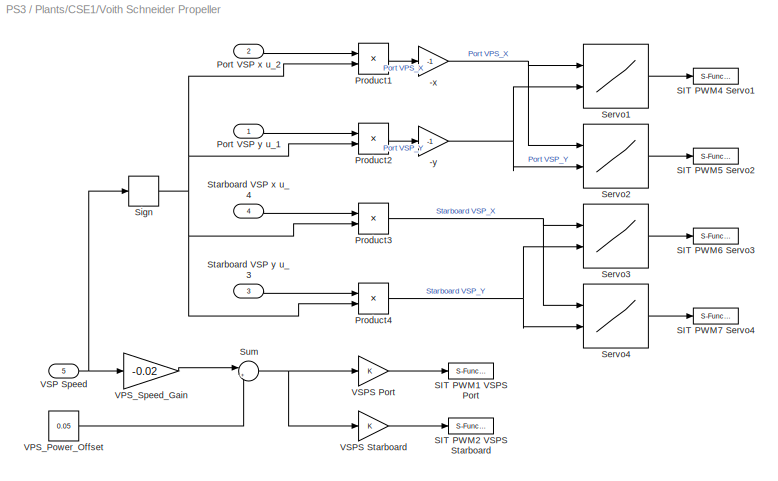
BLOCK [SubSystem] Plants/CSE1/Voith Schneider Propeller 
  FunctionWithSeparateData = off
  MaskHideContents = off
  MinAlgLoopOccurrences = off
  Opaque = off
  Ports = [5]
  PropExecContextOutsideSubsystem = off
  RTWSystemCode = Auto
  RequestExecContextInheritance = off
BLOCK [Gain] Plants/CSE1/Voith Schneider Propeller /-x
  Gain = -1
  OutDataTypeMode = Inherit via internal rule
  OutDataTypeStr = Inherit: Inherit via internal rule
  ParamDataTypeStr = Inherit: Inherit via internal rule
  ParameterDataTypeMode = Inherit via internal rule
  SaturateOnIntegerOverflow = off
BLOCK [Gain] Plants/CSE1/Voith Schneider Propeller /-y
  Gain = -1
  OutDataTypeMode = Inherit via internal rule
  OutDataTypeStr = Inherit: Inherit via internal rule
  ParamDataTypeStr = Inherit: Inherit via internal rule
  ParameterDataTypeMode = Inherit via internal rule
  SaturateOnIntegerOverflow = off
BLOCK [Inport] Plants/CSE1/Voith Schneider Propeller /Port VSP x u_2
  IconDisplay = Port number
  Port = 2
BLOCK [Inport] Plants/CSE1/Voith Schneider Propeller /Port VSP y u_1
  IconDisplay = Port number
BLOCK [Product] Plants/CSE1/Voith Schneider Propeller /Product1
  InputSameDT = off
  OutDataTypeMode = Inherit via internal rule
  OutDataTypeStr = Inherit: Inherit via internal rule
  Ports = [2, 1]
  SaturateOnIntegerOverflow = off
BLOCK [Product] Plants/CSE1/Voith Schneider Propeller /Product2
  InputSameDT = off
  OutDataTypeMode = Inherit via internal rule
  OutDataTypeStr = Inherit: Inherit via internal rule
  Ports = [2, 1]
  SaturateOnIntegerOverflow = off
BLOCK [Product] Plants/CSE1/Voith Schneider Propeller /Product3
  InputSameDT = off
  OutDataTypeMode = Inherit via internal rule
  OutDataTypeStr = Inherit: Inherit via internal rule
  Ports = [2, 1]
  SaturateOnIntegerOverflow = off
BLOCK [Product] Plants/CSE1/Voith Schneider Propeller /Product4
  InputSameDT = off
  OutDataTypeMode = Inherit via internal rule
  OutDataTypeStr = Inherit: Inherit via internal rule
  Ports = [2, 1]
  SaturateOnIntegerOverflow = off
BLOCK [S-Function] Plants/CSE1/Voith Schneider Propeller /SIT PWM1 VSPS Port
  CopyFcn = NI_SIT_IO_callbacks(1);
  DeleteFcn = NI_SIT_IO_callbacks(2);
  EnableBusSupport = off
  FunctionName = NI_SIT_IO
  MaskCallbackString = NI_SIT_IO_callbacks(3);|||NI_SIT_IO_callbacks(4);||
  MaskDescription = Use this outport on any level of nested subsystems to allow the LabVIEW Simulation Interface Toolkit to map hardware to it.
  MaskDisplay = patch([-x x], [-y y], [.90980 .81960 .32156]);\nplot([0 -x x 0], [rad -y y rad]);\nfprintf('SIT%d', portnum);
  MaskEnableString = on,on,on,on,on,on
  MaskIconFrame = off
  MaskIconOpaque = on
  MaskIconRotate = none
  MaskIconUnits = autoscale
  MaskInitialization = NI_SIT_IO_init;
  MaskPortRotate = default
  MaskPromptString = Port number:|Port dimensions (-1 for dynamically sized):|Sample time (-1 for inherited):|Data type:|Signal type:|Block type:
  MaskStyleString = edit,edit,edit,popup(auto|double|single|int8|uint8|int16|uint16|int32|uint32|boolean),popup(auto|real|complex),edit
  MaskTabNameString = Parameters,Parameters,Parameters,Parameters,Parameters,Parameters
  MaskToolTipString = on,on,on,on,on,on
  MaskTunableValueString = off,off,off,off,off,off
  MaskType = SIT Outport
  MaskValueString = 5|-1|-1|auto|auto|0
  MaskVarAliasString = ,,,,,
  MaskVariables = portnum=@1;width=@2;stime=@3;dtype=@4;stype=@5;btype=@6;
  MaskVisibilityString = on,on,on,on,on,off
  Parameters = width dtype portnum stime stype btype
  Ports = [1]
  Priority = 5
BLOCK [S-Function] Plants/CSE1/Voith Schneider Propeller /SIT PWM2 VSPS Starboard
  CopyFcn = NI_SIT_IO_callbacks(1);
  DeleteFcn = NI_SIT_IO_callbacks(2);
  EnableBusSupport = off
  FunctionName = NI_SIT_IO
  MaskCallbackString = NI_SIT_IO_callbacks(3);|||NI_SIT_IO_callbacks(4);||
  MaskDescription = Use this outport on any level of nested subsystems to allow the LabVIEW Simulation Interface Toolkit to map hardware to it.
  MaskDisplay = patch([-x x], [-y y], [.90980 .81960 .32156]);\nplot([0 -x x 0], [rad -y y rad]);\nfprintf('SIT%d', portnum);
  MaskEnableString = on,on,on,on,on,on
  MaskIconFrame = off
  MaskIconOpaque = on
  MaskIconRotate = none
  MaskIconUnits = autoscale
  MaskInitialization = NI_SIT_IO_init;
  MaskPortRotate = default
  MaskPromptString = Port number:|Port dimensions (-1 for dynamically sized):|Sample time (-1 for inherited):|Data type:|Signal type:|Block type:
  MaskStyleString = edit,edit,edit,popup(auto|double|single|int8|uint8|int16|uint16|int32|uint32|boolean),popup(auto|real|complex),edit
  MaskTabNameString = Parameters,Parameters,Parameters,Parameters,Parameters,Parameters
  MaskToolTipString = on,on,on,on,on,on
  MaskTunableValueString = off,off,off,off,off,off
  MaskType = SIT Outport
  MaskValueString = 6|-1|-1|auto|auto|0
  MaskVarAliasString = ,,,,,
  MaskVariables = portnum=@1;width=@2;stime=@3;dtype=@4;stype=@5;btype=@6;
  MaskVisibilityString = on,on,on,on,on,off
  Parameters = width dtype portnum stime stype btype
  Ports = [1]
  Priority = 6
BLOCK [S-Function] Plants/CSE1/Voith Schneider Propeller /SIT PWM4 Servo1
  CopyFcn = NI_SIT_IO_callbacks(1);
  DeleteFcn = NI_SIT_IO_callbacks(2);
  EnableBusSupport = off
  FunctionName = NI_SIT_IO
  MaskCallbackString = NI_SIT_IO_callbacks(3);|||NI_SIT_IO_callbacks(4);||
  MaskDescription = Use this outport on any level of nested subsystems to allow the LabVIEW Simulation Interface Toolkit to map hardware to it.
  MaskDisplay = patch([-x x], [-y y], [.90980 .81960 .32156]);\nplot([0 -x x 0], [rad -y y rad]);\nfprintf('SIT%d', portnum);
  MaskEnableString = on,on,on,on,on,on
  MaskIconFrame = off
  MaskIconOpaque = on
  MaskIconRotate = none
  MaskIconUnits = autoscale
  MaskInitialization = NI_SIT_IO_init;
  MaskPortRotate = default
  MaskPromptString = Port number:|Port dimensions (-1 for dynamically sized):|Sample time (-1 for inherited):|Data type:|Signal type:|Block type:
  MaskStyleString = edit,edit,edit,popup(auto|double|single|int8|uint8|int16|uint16|int32|uint32|boolean),popup(auto|real|complex),edit
  MaskTabNameString = Parameters,Parameters,Parameters,Parameters,Parameters,Parameters
  MaskToolTipString = on,on,on,on,on,on
  MaskTunableValueString = off,off,off,off,off,off
  MaskType = SIT Outport
  MaskValueString = 1|-1|-1|auto|auto|0
  MaskVarAliasString = ,,,,,
  MaskVariables = portnum=@1;width=@2;stime=@3;dtype=@4;stype=@5;btype=@6;
  MaskVisibilityString = on,on,on,on,on,off
  Parameters = width dtype portnum stime stype btype
  Ports = [1]
  Priority = 1
BLOCK [S-Function] Plants/CSE1/Voith Schneider Propeller /SIT PWM5 Servo2
  CopyFcn = NI_SIT_IO_callbacks(1);
  DeleteFcn = NI_SIT_IO_callbacks(2);
  EnableBusSupport = off
  FunctionName = NI_SIT_IO
  MaskCallbackString = NI_SIT_IO_callbacks(3);|||NI_SIT_IO_callbacks(4);||
  MaskDescription = Use this outport on any level of nested subsystems to allow the LabVIEW Simulation Interface Toolkit to map hardware to it.
  MaskDisplay = patch([-x x], [-y y], [.90980 .81960 .32156]);\nplot([0 -x x 0], [rad -y y rad]);\nfprintf('SIT%d', portnum);
  MaskEnableString = on,on,on,on,on,on
  MaskIconFrame = off
  MaskIconOpaque = on
  MaskIconRotate = none
  MaskIconUnits = autoscale
  MaskInitialization = NI_SIT_IO_init;
  MaskPortRotate = default
  MaskPromptString = Port number:|Port dimensions (-1 for dynamically sized):|Sample time (-1 for inherited):|Data type:|Signal type:|Block type:
  MaskStyleString = edit,edit,edit,popup(auto|double|single|int8|uint8|int16|uint16|int32|uint32|boolean),popup(auto|real|complex),edit
  MaskTabNameString = Parameters,Parameters,Parameters,Parameters,Parameters,Parameters
  MaskToolTipString = on,on,on,on,on,on
  MaskTunableValueString = off,off,off,off,off,off
  MaskType = SIT Outport
  MaskValueString = 2|-1|-1|auto|auto|0
  MaskVarAliasString = ,,,,,
  MaskVariables = portnum=@1;width=@2;stime=@3;dtype=@4;stype=@5;btype=@6;
  MaskVisibilityString = on,on,on,on,on,off
  Parameters = width dtype portnum stime stype btype
  Ports = [1]
  Priority = 2
BLOCK [S-Function] Plants/CSE1/Voith Schneider Propeller /SIT PWM6 Servo3
  CopyFcn = NI_SIT_IO_callbacks(1);
  DeleteFcn = NI_SIT_IO_callbacks(2);
  EnableBusSupport = off
  FunctionName = NI_SIT_IO
  MaskCallbackString = NI_SIT_IO_callbacks(3);|||NI_SIT_IO_callbacks(4);||
  MaskDescription = Use this outport on any level of nested subsystems to allow the LabVIEW Simulation Interface Toolkit to map hardware to it.
  MaskDisplay = patch([-x x], [-y y], [.90980 .81960 .32156]);\nplot([0 -x x 0], [rad -y y rad]);\nfprintf('SIT%d', portnum);
  MaskEnableString = on,on,on,on,on,on
  MaskIconFrame = off
  MaskIconOpaque = on
  MaskIconRotate = none
  MaskIconUnits = autoscale
  MaskInitialization = NI_SIT_IO_init;
  MaskPortRotate = default
  MaskPromptString = Port number:|Port dimensions (-1 for dynamically sized):|Sample time (-1 for inherited):|Data type:|Signal type:|Block type:
  MaskStyleString = edit,edit,edit,popup(auto|double|single|int8|uint8|int16|uint16|int32|uint32|boolean),popup(auto|real|complex),edit
  MaskTabNameString = Parameters,Parameters,Parameters,Parameters,Parameters,Parameters
  MaskToolTipString = on,on,on,on,on,on
  MaskTunableValueString = off,off,off,off,off,off
  MaskType = SIT Outport
  MaskValueString = 3|-1|-1|auto|auto|0
  MaskVarAliasString = ,,,,,
  MaskVariables = portnum=@1;width=@2;stime=@3;dtype=@4;stype=@5;btype=@6;
  MaskVisibilityString = on,on,on,on,on,off
  Parameters = width dtype portnum stime stype btype
  Ports = [1]
  Priority = 3
BLOCK [S-Function] Plants/CSE1/Voith Schneider Propeller /SIT PWM7 Servo4
  CopyFcn = NI_SIT_IO_callbacks(1);
  DeleteFcn = NI_SIT_IO_callbacks(2);
  EnableBusSupport = off
  FunctionName = NI_SIT_IO
  MaskCallbackString = NI_SIT_IO_callbacks(3);|||NI_SIT_IO_callbacks(4);||
  MaskDescription = Use this outport on any level of nested subsystems to allow the LabVIEW Simulation Interface Toolkit to map hardware to it.
  MaskDisplay = patch([-x x], [-y y], [.90980 .81960 .32156]);\nplot([0 -x x 0], [rad -y y rad]);\nfprintf('SIT%d', portnum);
  MaskEnableString = on,on,on,on,on,on
  MaskIconFrame = off
  MaskIconOpaque = on
  MaskIconRotate = none
  MaskIconUnits = autoscale
  MaskInitialization = NI_SIT_IO_init;
  MaskPortRotate = default
  MaskPromptString = Port number:|Port dimensions (-1 for dynamically sized):|Sample time (-1 for inherited):|Data type:|Signal type:|Block type:
  MaskStyleString = edit,edit,edit,popup(auto|double|single|int8|uint8|int16|uint16|int32|uint32|boolean),popup(auto|real|complex),edit
  MaskTabNameString = Parameters,Parameters,Parameters,Parameters,Parameters,Parameters
  MaskToolTipString = on,on,on,on,on,on
  MaskTunableValueString = off,off,off,off,off,off
  MaskType = SIT Outport
  MaskValueString = 4|-1|-1|auto|auto|0
  MaskVarAliasString = ,,,,,
  MaskVariables = portnum=@1;width=@2;stime=@3;dtype=@4;stype=@5;btype=@6;
  MaskVisibilityString = on,on,on,on,on,off
  Parameters = width dtype portnum stime stype btype
  Ports = [1]
  Priority = 4
BLOCK [Lookup2D] Plants/CSE1/Voith Schneider Propeller /Servo1
  ColumnIndex = [-1,0,1]
  InputSameDT = off
  RowIndex = [-1,0,1]
  SaturateOnIntegerOverflow = off
  Table = reshape([0.06,0.0495363,0.043301,0.06,0.052446,0.043301,0.06,0.0541518,0.043301],3,3)
BLOCK [Lookup2D] Plants/CSE1/Voith Schneider Propeller /Servo2
  ColumnIndex = [-1,0,1]
  InputSameDT = off
  RowIndex = [-1,0,1]
  SaturateOnIntegerOverflow = off
  Table = reshape([0.03860880,0.0386088,0.03860880,0.0459941,0.0477243,0.0500953,0.057,0.057,0.057],3,3)
BLOCK [Lookup2D] Plants/CSE1/Voith Schneider Propeller /Servo3
  ColumnIndex = [-1,0,1]
  InputSameDT = off
  RowIndex = [-1,0,1]
  SaturateOnIntegerOverflow = off
  Table = reshape([0.0640809,0.0640809,0.0640809,0.0539629,0.0541315,0.0556492,0.0442664,0.0442664,0.0442664],3,3)
BLOCK [Lookup2D] Plants/CSE1/Voith Schneider Propeller /Servo4
  ColumnIndex = [-1,0,1]
  InputSameDT = off
  RowIndex = [-1,0,1]
  SaturateOnIntegerOverflow = off
  Table = reshape([0.0602867,0.0470489,0.0403879,0.0602867,0.049747,0.0403879,0.0602867,0.0526138,0.0403879],3,3)
BLOCK [Signum] Plants/CSE1/Voith Schneider Propeller /Sign
BLOCK [Inport] Plants/CSE1/Voith Schneider Propeller /Starboard VSP x u_4
  IconDisplay = Port number
  Port = 4
BLOCK [Inport] Plants/CSE1/Voith Schneider Propeller /Starboard VSP y u_3
  IconDisplay = Port number
  Port = 3
BLOCK [Sum] Plants/CSE1/Voith Schneider Propeller /Sum
  IconShape = round
  InputSameDT = off
  Inputs = |++
  OutDataTypeMode = Inherit via internal rule
  OutDataTypeStr = Inherit: Inherit via internal rule
  Ports = [2, 1]
  SaturateOnIntegerOverflow = off
BLOCK [Constant] Plants/CSE1/Voith Schneider Propeller /VPS_Power_Offset
  Value = 0.05
BLOCK [Gain] Plants/CSE1/Voith Schneider Propeller /VPS_Speed_Gain
  Gain = -0.02
  OutDataTypeMode = Inherit via internal rule
  OutDataTypeStr = Inherit: Inherit via internal rule
  ParamDataTypeStr = Inherit: Inherit via internal rule
  ParameterDataTypeMode = Inherit via internal rule
  SaturateOnIntegerOverflow = off
BLOCK [Inport] Plants/CSE1/Voith Schneider Propeller /VSP Speed
  IconDisplay = Port number
  Port = 5
BLOCK [Gain] Plants/CSE1/Voith Schneider Propeller /VSPS Port
  OutDataType = fixdt(1, 16)
  OutDataTypeMode = Inherit via internal rule
  OutDataTypeStr = Inherit: Inherit via internal rule
  OutScaling = 2^0
  ParamDataTypeStr = Inherit: Inherit via internal rule
  ParameterDataType = fixdt(1, 16)
  ParameterDataTypeMode = Inherit via internal rule
  ParameterScaling = 2^0
  SaturateOnIntegerOverflow = off
BLOCK [Gain] Plants/CSE1/Voith Schneider Propeller /VSPS Starboard
  OutDataType = fixdt(1, 16)
  OutDataTypeMode = Inherit via internal rule
  OutDataTypeStr = Inherit: Inherit via internal rule
  OutScaling = 2^0
  ParamDataTypeStr = Inherit: Inherit via internal rule
  ParameterDataType = fixdt(1, 16)
  ParameterDataTypeMode = Inherit via internal rule
  ParameterScaling = 2^0
  SaturateOnIntegerOverflow = off
BLOCK [Demux] Plants/Demux
  DisplayOption = bar
  Outputs = 7
  Ports = [1, 7]
BLOCK [Constant] Plants/Enable CSE1
  Value = 0
BLOCK [Mux] Plants/Mux
  DisplayOption = bar
  Inputs = 7
  Ports = [7, 1]
BLOCK [Inport] Plants/Thurster setting
  IconDisplay = Port number
BLOCK [Gain] Plants/plant BT power
  OutDataType = fixdt(1, 16)
  OutDataTypeMode = Inherit via internal rule
  OutDataTypeStr = Inherit: Inherit via internal rule
  OutScaling = 2^0
  ParamDataTypeStr = Inherit: Inherit via internal rule
  ParameterDataType = fixdt(1, 16)
  ParameterDataTypeMode = Inherit via internal rule
  ParameterScaling = 2^0
  SaturateOnIntegerOverflow = off
BLOCK [Gain] Plants/plant VSP speed
  OutDataType = fixdt(1, 16)
  OutDataTypeMode = Inherit via internal rule
  OutDataTypeStr = Inherit: Inherit via internal rule
  OutScaling = 2^0
  ParamDataTypeStr = Inherit: Inherit via internal rule
  ParameterDataType = fixdt(1, 16)
  ParameterDataTypeMode = Inherit via internal rule
  ParameterScaling = 2^0
  SaturateOnIntegerOverflow = off
BLOCK [Gain] Plants/plant u_1
  OutDataType = fixdt(1, 16)
  OutDataTypeMode = Inherit via internal rule
  OutDataTypeStr = Inherit: Inherit via internal rule
  OutScaling = 2^0
  ParamDataTypeStr = Inherit: Inherit via internal rule
  ParameterDataType = fixdt(1, 16)
  ParameterDataTypeMode = Inherit via internal rule
  ParameterScaling = 2^0
  SaturateOnIntegerOverflow = off
BLOCK [Gain] Plants/plant u_2
  OutDataType = fixdt(1, 16)
  OutDataTypeMode = Inherit via internal rule
  OutDataTypeStr = Inherit: Inherit via internal rule
  OutScaling = 2^0
  ParamDataTypeStr = Inherit: Inherit via internal rule
  ParameterDataType = fixdt(1, 16)
  ParameterDataTypeMode = Inherit via internal rule
  ParameterScaling = 2^0
  SaturateOnIntegerOverflow = off
BLOCK [Gain] Plants/plant u_3
  OutDataType = fixdt(1, 16)
  OutDataTypeMode = Inherit via internal rule
  OutDataTypeStr = Inherit: Inherit via internal rule
  OutScaling = 2^0
  ParamDataTypeStr = Inherit: Inherit via internal rule
  ParameterDataType = fixdt(1, 16)
  ParameterDataTypeMode = Inherit via internal rule
  ParameterScaling = 2^0
  SaturateOnIntegerOverflow = off
BLOCK [Gain] Plants/plant u_4
  OutDataType = fixdt(1, 16)
  OutDataTypeMode = Inherit via internal rule
  OutDataTypeStr = Inherit: Inherit via internal rule
  OutScaling = 2^0
  ParamDataTypeStr = Inherit: Inherit via internal rule
  ParameterDataType = fixdt(1, 16)
  ParameterDataTypeMode = Inherit via internal rule
  ParameterScaling = 2^0
  SaturateOnIntegerOverflow = off
BLOCK [Gain] Plants/plant u_5
  OutDataType = fixdt(1, 16)
  OutDataTypeMode = Inherit via internal rule
  OutDataTypeStr = Inherit: Inherit via internal rule
  OutScaling = 2^0
  ParamDataTypeStr = Inherit: Inherit via internal rule
  ParameterDataType = fixdt(1, 16)
  ParameterDataTypeMode = Inherit via internal rule
  ParameterScaling = 2^0
  SaturateOnIntegerOverflow = off
BLOCK [S-Function] SignalProbe
  Description = Use this block with SIT.
  EnableBusSupport = off
  FunctionName = SignalProbe
  MaskDescription = The LabVIEW Simulation Interface Toolkit uses the SignalProbe block to probe the signals in the model. The SignalProbe block must be on the top level of the model hierarchy. You can have only one SignalProbe block per model file. Do not rename the SignalProbe block. Do not change the name of another model block to SignalProbe.
  MaskIconFrame = on
  MaskIconOpaque = on
  MaskIconRotate = none
  MaskIconUnits = autoscale
  MaskPortRotate = default
  Parameters = 1
  Ports = []
  PreSaveFcn = NISIT_ModelVars;
ANNOTATION Control Systems: 0 - PS3 u input control\n1 - PS3 tau input control
ANNOTATION Control Systems/PS3 input: Y-axis of analog sticks points up (in the direction of the shoulder buttons),\nwhile X-axis points to the right (in the direction of \nTriange, Circle, X and Square buttons)
ANNOTATION Control Systems/PS3 tau input control: The control provides a more intuire control then manual thruster control
ANNOTATION Control Systems/PS3 tau input control: This subsystem is a modifired version of Håkon Skåtuns subsystem Joystick
ANNOTATION Control Systems/PS3 tau input control/Thruster allocation/f_act to u_act/f_1 to u_1: Check if the input value is less, equal or greater then zero
ANNOTATION Control Systems/PS3 tau input control/Thruster allocation/f_act to u_act/f_1 to u_1: If 0: control input is 3
ANNOTATION Control Systems/PS3 tau input control/Thruster allocation/f_act to u_act/f_1 to u_1: The mapping is divided into 3 parts:\nnegative, zero and positive
ANNOTATION Control Systems/PS3 tau input control/Thruster allocation/f_act to u_act/f_2 to u_2: Check if the input value is less, equal or greater then zero
ANNOTATION Control Systems/PS3 tau input control/Thruster allocation/f_act to u_act/f_2 to u_2: If 0: control input is 3
ANNOTATION Control Systems/PS3 tau input control/Thruster allocation/f_act to u_act/f_2 to u_2: The mapping is divided into 3 parts:\nNegative, zero and positive
ANNOTATION Control Systems/PS3 tau input control/Thruster allocation/f_act to u_act/f_3 to u_3: Check if the input value is less, equal or greater then zero
ANNOTATION Control Systems/PS3 tau input control/Thruster allocation/f_act to u_act/f_3 to u_3: If 0: control input is 3
ANNOTATION Control Systems/PS3 tau input control/Thruster allocation/f_act to u_act/f_3 to u_3: The mapping is divided into 3 parts:\nNegative, zero and positive
ANNOTATION Control Systems/PS3 tau input control/Thruster allocation/f_act to u_act/f_4 to u_4: Check if the input value is less, equal or greater then zero
ANNOTATION Control Systems/PS3 tau input control/Thruster allocation/f_act to u_act/f_4 to u_4: If 0: control input is 3
ANNOTATION Control Systems/PS3 tau input control/Thruster allocation/f_act to u_act/f_4 to u_4: The mapping is divided into 3 parts:\nNegative, zero and positive
ANNOTATION Control Systems/PS3 tau input control/Thruster allocation/f_act to u_act/f_5 to u_5: Check if the input value is less, equal or greater then zero
ANNOTATION Control Systems/PS3 tau input control/Thruster allocation/f_act to u_act/f_5 to u_5: If 0: control input is 3
ANNOTATION Control Systems/PS3 tau input control/Thruster allocation/f_act to u_act/f_5 to u_5: The mapping is divided into 3 parts:\nNegative, zero and positive
ANNOTATION Control Systems/PS3 u input control: Manuel thruster control is intended for testing and flexing of thrusters and its signals
ANNOTATION Control Systems/PS3 u input control: Mapping PS3 signals to thruster settings:\n- Y-position controls surge force of VSP\n- X-positon controls sway force of VSP\n- Left Analogstick controls port VSP\n- Right Analogstick controls starboard VSP\n- Postive values gives postive motions and vice versa\n- R2 pressed gives postive yaw motion\n- L2 pressed gives negative yaw motion
ANNOTATION Control Systems/PS3 u input control: This subsystem is a modifired version of Håkon Skåtuns subsystem Manual Control
ANNOTATION Plants/CSE1: This subsystem is a modifired version of Håkon Skåtuns subsystem CSE1
LINE Control Systems/Control Mode:1 -> Control Systems/Thruster setting\nSwitch:1
LINE Control Systems/PS3 input/AS_LX:1 -> Control Systems/PS3 input/ScalingLX:1
LINE Control Systems/PS3 input/AS_LY:1 -> Control Systems/PS3 input/ScalingLY:1
LINE Control Systems/PS3 input/AS_RX:1 -> Control Systems/PS3 input/Scaling_RX:1
LINE Control Systems/PS3 input/AS_RY:1 -> Control Systems/PS3 input/ScalingRY:1
LINE Control Systems/PS3 input/L2:1 -> Control Systems/PS3 input/Mux:5
LINE Control Systems/PS3 input/Mux:1 -> Control Systems/PS3 input/DuelShock 3 signals:1
LINE Control Systems/PS3 input/PS3_BT_Power:1 -> Control Systems/PS3 input/PS3 BT Power:1
LINE Control Systems/PS3 input/PS3_VSP_Speed:1 -> Control Systems/PS3 input/PS3 VSP Speed:1
LINE Control Systems/PS3 input/R2:1 -> Control Systems/PS3 input/Mux:6
LINE Control Systems/PS3 input/ScalingLX:1 -> Control Systems/PS3 input/Mux:1
LINE Control Systems/PS3 input/ScalingLY:1 -> Control Systems/PS3 input/Mux:2
LINE Control Systems/PS3 input/ScalingRY:1 -> Control Systems/PS3 input/Mux:4
LINE Control Systems/PS3 input/Scaling_RX:1 -> Control Systems/PS3 input/Mux:3
NET Control Systems/PS3 input:1 -> Control Systems/PS3 tau input control:1, Control Systems/PS3 u input control:1
NET Control Systems/PS3 input:2 -> Control Systems/PS3 tau input control:2, Control Systems/PS3 u input control:2
NET Control Systems/PS3 input:3 -> Control Systems/PS3 tau input control:3, Control Systems/PS3 u input control:3
LINE Control Systems/PS3 tau input control/Demux1:1 -> Control Systems/PS3 tau input control/Sum2:1
LINE Control Systems/PS3 tau input control/Demux1:2 -> Control Systems/PS3 tau input control/Sum1:1
LINE Control Systems/PS3 tau input control/Demux1:3 -> Control Systems/PS3 tau input control/Sum2:2
LINE Control Systems/PS3 tau input control/Demux1:4 -> Control Systems/PS3 tau input control/Sum1:2
LINE Control Systems/PS3 tau input control/Demux1:5 -> Control Systems/PS3 tau input control/Sum:1
LINE Control Systems/PS3 tau input control/Demux1:6 -> Control Systems/PS3 tau input control/Sum:2
LINE Control Systems/PS3 tau input control/Demux2:1 -> Control Systems/PS3 tau input control/Joystick u_1:1
LINE Control Systems/PS3 tau input control/Demux2:2 -> Control Systems/PS3 tau input control/Joystick u_2:1
LINE Control Systems/PS3 tau input control/Demux2:3 -> Control Systems/PS3 tau input control/Joystick u_3:1
LINE Control Systems/PS3 tau input control/Demux2:4 -> Control Systems/PS3 tau input control/Joystick u_4:1
LINE Control Systems/PS3 tau input control/Demux2:5 -> Control Systems/PS3 tau input control/Joystick u_5:1
LINE Control Systems/PS3 tau input control/Joystick u_1:1 -> Control Systems/PS3 tau input control/Mux2:1
LINE Control Systems/PS3 tau input control/Joystick u_2:1 -> Control Systems/PS3 tau input control/Mux2:2
LINE Control Systems/PS3 tau input control/Joystick u_3:1 -> Control Systems/PS3 tau input control/Mux2:3
LINE Control Systems/PS3 tau input control/Joystick u_4:1 -> Control Systems/PS3 tau input control/Mux2:4
LINE Control Systems/PS3 tau input control/Joystick u_5:1 -> Control Systems/PS3 tau input control/Mux2:5
LINE Control Systems/PS3 tau input control/Mux1:1 -> Control Systems/PS3 tau input control/Thruster setting:1
LINE Control Systems/PS3 tau input control/Mux2:1 -> Control Systems/PS3 tau input control/Mux1:1
LINE Control Systems/PS3 tau input control/Mux:1 -> Control Systems/PS3 tau input control/Thruster allocation:1
LINE Control Systems/PS3 tau input control/PS3 BT Power:1 -> Control Systems/PS3 tau input control/Mux1:2
LINE Control Systems/PS3 tau input control/PS3 Signals:1 -> Control Systems/PS3 tau input control/Demux1:1
LINE Control Systems/PS3 tau input control/PS3 VSP Speed:1 -> Control Systems/PS3 tau input control/Mux1:3
LINE Control Systems/PS3 tau input control/Saturation:1 -> Control Systems/PS3 tau input control/Demux2:1
LINE Control Systems/PS3 tau input control/Sum1:1 -> Control Systems/PS3 tau input control/tau_surge:1
LINE Control Systems/PS3 tau input control/Sum2:1 -> Control Systems/PS3 tau input control/tau_sway:1
LINE Control Systems/PS3 tau input control/Sum:1 -> Control Systems/PS3 tau input control/tau_yaw:1
LINE Control Systems/PS3 tau input control/Thruster allocation/f_act to u_act/Demux:1 -> Control Systems/PS3 tau input control/Thruster allocation/f_act to u_act/f_1 to u_1:1
LINE Control Systems/PS3 tau input control/Thruster allocation/f_act to u_act/Demux:2 -> Control Systems/PS3 tau input control/Thruster allocation/f_act to u_act/f_2 to u_2:1
LINE Control Systems/PS3 tau input control/Thruster allocation/f_act to u_act/Demux:3 -> Control Systems/PS3 tau input control/Thruster allocation/f_act to u_act/f_3 to u_3:1
LINE Control Systems/PS3 tau input control/Thruster allocation/f_act to u_act/Demux:4 -> Control Systems/PS3 tau input control/Thruster allocation/f_act to u_act/f_4 to u_4:1
LINE Control Systems/PS3 tau input control/Thruster allocation/f_act to u_act/Demux:5 -> Control Systems/PS3 tau input control/Thruster allocation/f_act to u_act/f_5 to u_5:1
LINE Control Systems/PS3 tau input control/Thruster allocation/f_act to u_act/Mux:1 -> Control Systems/PS3 tau input control/Thruster allocation/f_act to u_act/u_act:1
NET Control Systems/PS3 tau input control/Thruster allocation/f_act to u_act/f_1 to u_1/Dead Zone:1 -> Control Systems/PS3 tau input control/Thruster allocation/f_act to u_act/f_1 to u_1/If < 0:1, Control Systems/PS3 tau input control/Thruster allocation/f_act to u_act/f_1 to u_1/If > 0:1, Control Systems/PS3 tau input control/Thruster allocation/f_act to u_act/f_1 to u_1/if == 0:1
LINE Control Systems/PS3 tau input control/Thruster allocation/f_act to u_act/f_1 to u_1/Gain1:1 -> Control Systems/PS3 tau input control/Thruster allocation/f_act to u_act/f_1 to u_1/Sum:3
LINE Control Systems/PS3 tau input control/Thruster allocation/f_act to u_act/f_1 to u_1/Gain:1 -> Control Systems/PS3 tau input control/Thruster allocation/f_act to u_act/f_1 to u_1/Sum:2
LINE Control Systems/PS3 tau input control/Thruster allocation/f_act to u_act/f_1 to u_1/If < 0:1 -> Control Systems/PS3 tau input control/Thruster allocation/f_act to u_act/f_1 to u_1/Sum:1
LINE Control Systems/PS3 tau input control/Thruster allocation/f_act to u_act/f_1 to u_1/If > 0:1 -> Control Systems/PS3 tau input control/Thruster allocation/f_act to u_act/f_1 to u_1/Gain1:1
LINE Control Systems/PS3 tau input control/Thruster allocation/f_act to u_act/f_1 to u_1/Multiport\nSwitch:1 -> Control Systems/PS3 tau input control/Thruster allocation/f_act to u_act/f_1 to u_1/u_1:1
LINE Control Systems/PS3 tau input control/Thruster allocation/f_act to u_act/f_1 to u_1/Sum:1 -> Control Systems/PS3 tau input control/Thruster allocation/f_act to u_act/f_1 to u_1/Multiport\nSwitch:1
LINE Control Systems/PS3 tau input control/Thruster allocation/f_act to u_act/f_1 to u_1/f_1 < 0:1 -> Control Systems/PS3 tau input control/Thruster allocation/f_act to u_act/f_1 to u_1/Multiport\nSwitch:2
LINE Control Systems/PS3 tau input control/Thruster allocation/f_act to u_act/f_1 to u_1/f_1 = 0:1 -> Control Systems/PS3 tau input control/Thruster allocation/f_act to u_act/f_1 to u_1/Multiport\nSwitch:3
LINE Control Systems/PS3 tau input control/Thruster allocation/f_act to u_act/f_1 to u_1/f_1 > 0:1 -> Control Systems/PS3 tau input control/Thruster allocation/f_act to u_act/f_1 to u_1/Multiport\nSwitch:4
NET Control Systems/PS3 tau input control/Thruster allocation/f_act to u_act/f_1 to u_1/f_1:1 -> Control Systems/PS3 tau input control/Thruster allocation/f_act to u_act/f_1 to u_1/Dead Zone:1, Control Systems/PS3 tau input control/Thruster allocation/f_act to u_act/f_1 to u_1/f_1 < 0:1, Control Systems/PS3 tau input control/Thruster allocation/f_act to u_act/f_1 to u_1/f_1 > 0:1
LINE Control Systems/PS3 tau input control/Thruster allocation/f_act to u_act/f_1 to u_1/if == 0:1 -> Control Systems/PS3 tau input control/Thruster allocation/f_act to u_act/f_1 to u_1/Gain:1
LINE Control Systems/PS3 tau input control/Thruster allocation/f_act to u_act/f_1 to u_1:1 -> Control Systems/PS3 tau input control/Thruster allocation/f_act to u_act/Mux:1
NET Control Systems/PS3 tau input control/Thruster allocation/f_act to u_act/f_2 to u_2/Dead Zone:1 -> Control Systems/PS3 tau input control/Thruster allocation/f_act to u_act/f_2 to u_2/If < 0:1, Control Systems/PS3 tau input control/Thruster allocation/f_act to u_act/f_2 to u_2/If < 1:1, Control Systems/PS3 tau input control/Thruster allocation/f_act to u_act/f_2 to u_2/If > 0:1
LINE Control Systems/PS3 tau input control/Thruster allocation/f_act to u_act/f_2 to u_2/Gain1:1 -> Control Systems/PS3 tau input control/Thruster allocation/f_act to u_act/f_2 to u_2/Sum:3
LINE Control Systems/PS3 tau input control/Thruster allocation/f_act to u_act/f_2 to u_2/Gain:1 -> Control Systems/PS3 tau input control/Thruster allocation/f_act to u_act/f_2 to u_2/Sum:2
LINE Control Systems/PS3 tau input control/Thruster allocation/f_act to u_act/f_2 to u_2/If < 0:1 -> Control Systems/PS3 tau input control/Thruster allocation/f_act to u_act/f_2 to u_2/Sum:1
LINE Control Systems/PS3 tau input control/Thruster allocation/f_act to u_act/f_2 to u_2/If < 1:1 -> Control Systems/PS3 tau input control/Thruster allocation/f_act to u_act/f_2 to u_2/Gain:1
LINE Control Systems/PS3 tau input control/Thruster allocation/f_act to u_act/f_2 to u_2/If > 0:1 -> Control Systems/PS3 tau input control/Thruster allocation/f_act to u_act/f_2 to u_2/Gain1:1
LINE Control Systems/PS3 tau input control/Thruster allocation/f_act to u_act/f_2 to u_2/Multiport\nSwitch:1 -> Control Systems/PS3 tau input control/Thruster allocation/f_act to u_act/f_2 to u_2/u_2:1
LINE Control Systems/PS3 tau input control/Thruster allocation/f_act to u_act/f_2 to u_2/Sum:1 -> Control Systems/PS3 tau input control/Thruster allocation/f_act to u_act/f_2 to u_2/Multiport\nSwitch:1
LINE Control Systems/PS3 tau input control/Thruster allocation/f_act to u_act/f_2 to u_2/f_2 < 0:1 -> Control Systems/PS3 tau input control/Thruster allocation/f_act to u_act/f_2 to u_2/Multiport\nSwitch:2
LINE Control Systems/PS3 tau input control/Thruster allocation/f_act to u_act/f_2 to u_2/f_2 = 0:1 -> Control Systems/PS3 tau input control/Thruster allocation/f_act to u_act/f_2 to u_2/Multiport\nSwitch:3
LINE Control Systems/PS3 tau input control/Thruster allocation/f_act to u_act/f_2 to u_2/f_2 > 0:1 -> Control Systems/PS3 tau input control/Thruster allocation/f_act to u_act/f_2 to u_2/Multiport\nSwitch:4
NET Control Systems/PS3 tau input control/Thruster allocation/f_act to u_act/f_2 to u_2/f_2:1 -> Control Systems/PS3 tau input control/Thruster allocation/f_act to u_act/f_2 to u_2/Dead Zone:1, Control Systems/PS3 tau input control/Thruster allocation/f_act to u_act/f_2 to u_2/Scope2:1, Control Systems/PS3 tau input control/Thruster allocation/f_act to u_act/f_2 to u_2/f_2 < 0:1, Control Systems/PS3 tau input control/Thruster allocation/f_act to u_act/f_2 to u_2/f_2 > 0:1
LINE Control Systems/PS3 tau input control/Thruster allocation/f_act to u_act/f_2 to u_2:1 -> Control Systems/PS3 tau input control/Thruster allocation/f_act to u_act/Mux:2
NET Control Systems/PS3 tau input control/Thruster allocation/f_act to u_act/f_3 to u_3/Dead Zone:1 -> Control Systems/PS3 tau input control/Thruster allocation/f_act to u_act/f_3 to u_3/If < 0:1, Control Systems/PS3 tau input control/Thruster allocation/f_act to u_act/f_3 to u_3/If > 0:1, Control Systems/PS3 tau input control/Thruster allocation/f_act to u_act/f_3 to u_3/if == 0:1
LINE Control Systems/PS3 tau input control/Thruster allocation/f_act to u_act/f_3 to u_3/Gain1:1 -> Control Systems/PS3 tau input control/Thruster allocation/f_act to u_act/f_3 to u_3/Sum:3
LINE Control Systems/PS3 tau input control/Thruster allocation/f_act to u_act/f_3 to u_3/Gain:1 -> Control Systems/PS3 tau input control/Thruster allocation/f_act to u_act/f_3 to u_3/Sum:2
LINE Control Systems/PS3 tau input control/Thruster allocation/f_act to u_act/f_3 to u_3/If < 0:1 -> Control Systems/PS3 tau input control/Thruster allocation/f_act to u_act/f_3 to u_3/Sum:1
LINE Control Systems/PS3 tau input control/Thruster allocation/f_act to u_act/f_3 to u_3/If > 0:1 -> Control Systems/PS3 tau input control/Thruster allocation/f_act to u_act/f_3 to u_3/Gain1:1
LINE Control Systems/PS3 tau input control/Thruster allocation/f_act to u_act/f_3 to u_3/Multiport\nSwitch:1 -> Control Systems/PS3 tau input control/Thruster allocation/f_act to u_act/f_3 to u_3/u_3:1
LINE Control Systems/PS3 tau input control/Thruster allocation/f_act to u_act/f_3 to u_3/Sum:1 -> Control Systems/PS3 tau input control/Thruster allocation/f_act to u_act/f_3 to u_3/Multiport\nSwitch:1
LINE Control Systems/PS3 tau input control/Thruster allocation/f_act to u_act/f_3 to u_3/f_3 < 0:1 -> Control Systems/PS3 tau input control/Thruster allocation/f_act to u_act/f_3 to u_3/Multiport\nSwitch:2
LINE Control Systems/PS3 tau input control/Thruster allocation/f_act to u_act/f_3 to u_3/f_3 = 0:1 -> Control Systems/PS3 tau input control/Thruster allocation/f_act to u_act/f_3 to u_3/Multiport\nSwitch:3
LINE Control Systems/PS3 tau input control/Thruster allocation/f_act to u_act/f_3 to u_3/f_3 > 0:1 -> Control Systems/PS3 tau input control/Thruster allocation/f_act to u_act/f_3 to u_3/Multiport\nSwitch:4
NET Control Systems/PS3 tau input control/Thruster allocation/f_act to u_act/f_3 to u_3/f_3:1 -> Control Systems/PS3 tau input control/Thruster allocation/f_act to u_act/f_3 to u_3/Dead Zone:1, Control Systems/PS3 tau input control/Thruster allocation/f_act to u_act/f_3 to u_3/f_3 < 0:1, Control Systems/PS3 tau input control/Thruster allocation/f_act to u_act/f_3 to u_3/f_3 > 0:1
LINE Control Systems/PS3 tau input control/Thruster allocation/f_act to u_act/f_3 to u_3/if == 0:1 -> Control Systems/PS3 tau input control/Thruster allocation/f_act to u_act/f_3 to u_3/Gain:1
LINE Control Systems/PS3 tau input control/Thruster allocation/f_act to u_act/f_3 to u_3:1 -> Control Systems/PS3 tau input control/Thruster allocation/f_act to u_act/Mux:3
NET Control Systems/PS3 tau input control/Thruster allocation/f_act to u_act/f_4 to u_4/Dead Zone:1 -> Control Systems/PS3 tau input control/Thruster allocation/f_act to u_act/f_4 to u_4/If < 0:1, Control Systems/PS3 tau input control/Thruster allocation/f_act to u_act/f_4 to u_4/If > 0:1, Control Systems/PS3 tau input control/Thruster allocation/f_act to u_act/f_4 to u_4/if == 0:1
LINE Control Systems/PS3 tau input control/Thruster allocation/f_act to u_act/f_4 to u_4/Gain1:1 -> Control Systems/PS3 tau input control/Thruster allocation/f_act to u_act/f_4 to u_4/Sum:3
LINE Control Systems/PS3 tau input control/Thruster allocation/f_act to u_act/f_4 to u_4/Gain:1 -> Control Systems/PS3 tau input control/Thruster allocation/f_act to u_act/f_4 to u_4/Sum:2
LINE Control Systems/PS3 tau input control/Thruster allocation/f_act to u_act/f_4 to u_4/If < 0:1 -> Control Systems/PS3 tau input control/Thruster allocation/f_act to u_act/f_4 to u_4/Sum:1
LINE Control Systems/PS3 tau input control/Thruster allocation/f_act to u_act/f_4 to u_4/If > 0:1 -> Control Systems/PS3 tau input control/Thruster allocation/f_act to u_act/f_4 to u_4/Gain1:1
LINE Control Systems/PS3 tau input control/Thruster allocation/f_act to u_act/f_4 to u_4/Multiport\nSwitch:1 -> Control Systems/PS3 tau input control/Thruster allocation/f_act to u_act/f_4 to u_4/u_4:1
LINE Control Systems/PS3 tau input control/Thruster allocation/f_act to u_act/f_4 to u_4/Sum:1 -> Control Systems/PS3 tau input control/Thruster allocation/f_act to u_act/f_4 to u_4/Multiport\nSwitch:1
LINE Control Systems/PS3 tau input control/Thruster allocation/f_act to u_act/f_4 to u_4/f_4 < 0:1 -> Control Systems/PS3 tau input control/Thruster allocation/f_act to u_act/f_4 to u_4/Multiport\nSwitch:2
LINE Control Systems/PS3 tau input control/Thruster allocation/f_act to u_act/f_4 to u_4/f_4 = 0:1 -> Control Systems/PS3 tau input control/Thruster allocation/f_act to u_act/f_4 to u_4/Multiport\nSwitch:3
LINE Control Systems/PS3 tau input control/Thruster allocation/f_act to u_act/f_4 to u_4/f_4 > 0:1 -> Control Systems/PS3 tau input control/Thruster allocation/f_act to u_act/f_4 to u_4/Multiport\nSwitch:4
NET Control Systems/PS3 tau input control/Thruster allocation/f_act to u_act/f_4 to u_4/f_4:1 -> Control Systems/PS3 tau input control/Thruster allocation/f_act to u_act/f_4 to u_4/Dead Zone:1, Control Systems/PS3 tau input control/Thruster allocation/f_act to u_act/f_4 to u_4/f_4 < 0:1, Control Systems/PS3 tau input control/Thruster allocation/f_act to u_act/f_4 to u_4/f_4 > 0:1
LINE Control Systems/PS3 tau input control/Thruster allocation/f_act to u_act/f_4 to u_4/if == 0:1 -> Control Systems/PS3 tau input control/Thruster allocation/f_act to u_act/f_4 to u_4/Gain:1
LINE Control Systems/PS3 tau input control/Thruster allocation/f_act to u_act/f_4 to u_4:1 -> Control Systems/PS3 tau input control/Thruster allocation/f_act to u_act/Mux:4
NET Control Systems/PS3 tau input control/Thruster allocation/f_act to u_act/f_5 to u_5/Dead Zone:1 -> Control Systems/PS3 tau input control/Thruster allocation/f_act to u_act/f_5 to u_5/If < 0:1, Control Systems/PS3 tau input control/Thruster allocation/f_act to u_act/f_5 to u_5/If > 0:1, Control Systems/PS3 tau input control/Thruster allocation/f_act to u_act/f_5 to u_5/if == 0:1
LINE Control Systems/PS3 tau input control/Thruster allocation/f_act to u_act/f_5 to u_5/Gain1:1 -> Control Systems/PS3 tau input control/Thruster allocation/f_act to u_act/f_5 to u_5/Sum:3
LINE Control Systems/PS3 tau input control/Thruster allocation/f_act to u_act/f_5 to u_5/Gain:1 -> Control Systems/PS3 tau input control/Thruster allocation/f_act to u_act/f_5 to u_5/Sum:2
LINE Control Systems/PS3 tau input control/Thruster allocation/f_act to u_act/f_5 to u_5/If < 0:1 -> Control Systems/PS3 tau input control/Thruster allocation/f_act to u_act/f_5 to u_5/Sum:1
LINE Control Systems/PS3 tau input control/Thruster allocation/f_act to u_act/f_5 to u_5/If > 0:1 -> Control Systems/PS3 tau input control/Thruster allocation/f_act to u_act/f_5 to u_5/Gain1:1
LINE Control Systems/PS3 tau input control/Thruster allocation/f_act to u_act/f_5 to u_5/Multiport\nSwitch:1 -> Control Systems/PS3 tau input control/Thruster allocation/f_act to u_act/f_5 to u_5/u_5:1
LINE Control Systems/PS3 tau input control/Thruster allocation/f_act to u_act/f_5 to u_5/Sum:1 -> Control Systems/PS3 tau input control/Thruster allocation/f_act to u_act/f_5 to u_5/Multiport\nSwitch:1
LINE Control Systems/PS3 tau input control/Thruster allocation/f_act to u_act/f_5 to u_5/f_5 < 0:1 -> Control Systems/PS3 tau input control/Thruster allocation/f_act to u_act/f_5 to u_5/Multiport\nSwitch:2
LINE Control Systems/PS3 tau input control/Thruster allocation/f_act to u_act/f_5 to u_5/f_5 = 0:1 -> Control Systems/PS3 tau input control/Thruster allocation/f_act to u_act/f_5 to u_5/Multiport\nSwitch:3
LINE Control Systems/PS3 tau input control/Thruster allocation/f_act to u_act/f_5 to u_5/f_5 > 0:1 -> Control Systems/PS3 tau input control/Thruster allocation/f_act to u_act/f_5 to u_5/Multiport\nSwitch:4
NET Control Systems/PS3 tau input control/Thruster allocation/f_act to u_act/f_5 to u_5/f_5:1 -> Control Systems/PS3 tau input control/Thruster allocation/f_act to u_act/f_5 to u_5/Dead Zone:1, Control Systems/PS3 tau input control/Thruster allocation/f_act to u_act/f_5 to u_5/f_5 < 0:1, Control Systems/PS3 tau input control/Thruster allocation/f_act to u_act/f_5 to u_5/f_5 > 0:1
LINE Control Systems/PS3 tau input control/Thruster allocation/f_act to u_act/f_5 to u_5/if == 0:1 -> Control Systems/PS3 tau input control/Thruster allocation/f_act to u_act/f_5 to u_5/Gain:1
LINE Control Systems/PS3 tau input control/Thruster allocation/f_act to u_act/f_5 to u_5:1 -> Control Systems/PS3 tau input control/Thruster allocation/f_act to u_act/Mux:5
LINE Control Systems/PS3 tau input control/Thruster allocation/f_act to u_act/f_act:1 -> Control Systems/PS3 tau input control/Thruster allocation/f_act to u_act/Demux:1
LINE Control Systems/PS3 tau input control/Thruster allocation/f_act to u_act:1 -> Control Systems/PS3 tau input control/Thruster allocation/u_act:1
LINE Control Systems/PS3 tau input control/Thruster allocation/tau to f_act/Product:1 -> Control Systems/PS3 tau input control/Thruster allocation/tau to f_act/f_act:1
LINE Control Systems/PS3 tau input control/Thruster allocation/tau to f_act/Pseudoinverse:1 -> Control Systems/PS3 tau input control/Thruster allocation/tau to f_act/Product:1
LINE Control Systems/PS3 tau input control/Thruster allocation/tau to f_act/T_e/-l_x1:1 -> Control Systems/PS3 tau input control/Thruster allocation/tau to f_act/T_e/Mux:6
LINE Control Systems/PS3 tau input control/Thruster allocation/tau to f_act/T_e/-l_x2:1 -> Control Systems/PS3 tau input control/Thruster allocation/tau to f_act/T_e/Mux:12
LINE Control Systems/PS3 tau input control/Thruster allocation/tau to f_act/T_e/-l_y2:1 -> Control Systems/PS3 tau input control/Thruster allocation/tau to f_act/T_e/Mux:9
LINE Control Systems/PS3 tau input control/Thruster allocation/tau to f_act/T_e/3x5:1 -> Control Systems/PS3 tau input control/Thruster allocation/tau to f_act/T_e/T_e:1
LINE Control Systems/PS3 tau input control/Thruster allocation/tau to f_act/T_e/Mux:1 -> Control Systems/PS3 tau input control/Thruster allocation/tau to f_act/T_e/3x5:1
LINE Control Systems/PS3 tau input control/Thruster allocation/tau to f_act/T_e/T_e11:1 -> Control Systems/PS3 tau input control/Thruster allocation/tau to f_act/T_e/Mux:1
LINE Control Systems/PS3 tau input control/Thruster allocation/tau to f_act/T_e/T_e12:1 -> Control Systems/PS3 tau input control/Thruster allocation/tau to f_act/T_e/Mux:4
LINE Control Systems/PS3 tau input control/Thruster allocation/tau to f_act/T_e/T_e13:1 -> Control Systems/PS3 tau input control/Thruster allocation/tau to f_act/T_e/Mux:7
LINE Control Systems/PS3 tau input control/Thruster allocation/tau to f_act/T_e/T_e14:1 -> Control Systems/PS3 tau input control/Thruster allocation/tau to f_act/T_e/Mux:10
LINE Control Systems/PS3 tau input control/Thruster allocation/tau to f_act/T_e/T_e15:1 -> Control Systems/PS3 tau input control/Thruster allocation/tau to f_act/T_e/Mux:13
LINE Control Systems/PS3 tau input control/Thruster allocation/tau to f_act/T_e/T_e21:1 -> Control Systems/PS3 tau input control/Thruster allocation/tau to f_act/T_e/Mux:2
LINE Control Systems/PS3 tau input control/Thruster allocation/tau to f_act/T_e/T_e22:1 -> Control Systems/PS3 tau input control/Thruster allocation/tau to f_act/T_e/Mux:5
LINE Control Systems/PS3 tau input control/Thruster allocation/tau to f_act/T_e/T_e23:1 -> Control Systems/PS3 tau input control/Thruster allocation/tau to f_act/T_e/Mux:8
LINE Control Systems/PS3 tau input control/Thruster allocation/tau to f_act/T_e/T_e24:1 -> Control Systems/PS3 tau input control/Thruster allocation/tau to f_act/T_e/Mux:11
LINE Control Systems/PS3 tau input control/Thruster allocation/tau to f_act/T_e/T_e25:1 -> Control Systems/PS3 tau input control/Thruster allocation/tau to f_act/T_e/Mux:14
LINE Control Systems/PS3 tau input control/Thruster allocation/tau to f_act/T_e/l_x1:1 -> Control Systems/PS3 tau input control/Thruster allocation/tau to f_act/T_e/-l_x1:1
LINE Control Systems/PS3 tau input control/Thruster allocation/tau to f_act/T_e/l_x2:1 -> Control Systems/PS3 tau input control/Thruster allocation/tau to f_act/T_e/-l_x2:1
LINE Control Systems/PS3 tau input control/Thruster allocation/tau to f_act/T_e/l_x3:1 -> Control Systems/PS3 tau input control/Thruster allocation/tau to f_act/T_e/Mux:15
LINE Control Systems/PS3 tau input control/Thruster allocation/tau to f_act/T_e/l_y1:1 -> Control Systems/PS3 tau input control/Thruster allocation/tau to f_act/T_e/Mux:3
LINE Control Systems/PS3 tau input control/Thruster allocation/tau to f_act/T_e/l_y2:1 -> Control Systems/PS3 tau input control/Thruster allocation/tau to f_act/T_e/-l_y2:1
LINE Control Systems/PS3 tau input control/Thruster allocation/tau to f_act/T_e:1 -> Control Systems/PS3 tau input control/Thruster allocation/tau to f_act/Pseudoinverse:1
LINE Control Systems/PS3 tau input control/Thruster allocation/tau to f_act/tau:1 -> Control Systems/PS3 tau input control/Thruster allocation/tau to f_act/Product:2
LINE Control Systems/PS3 tau input control/Thruster allocation/tau to f_act:1 -> Control Systems/PS3 tau input control/Thruster allocation/f_act to u_act:1
LINE Control Systems/PS3 tau input control/Thruster allocation/tau:1 -> Control Systems/PS3 tau input control/Thruster allocation/tau to f_act:1
LINE Control Systems/PS3 tau input control/Thruster allocation:1 -> Control Systems/PS3 tau input control/Saturation:1
LINE Control Systems/PS3 tau input control/tau_surge:1 -> Control Systems/PS3 tau input control/Mux:1
LINE Control Systems/PS3 tau input control/tau_sway:1 -> Control Systems/PS3 tau input control/Mux:2
LINE Control Systems/PS3 tau input control/tau_yaw:1 -> Control Systems/PS3 tau input control/Mux:3
LINE Control Systems/PS3 tau input control:1 -> Control Systems/Thruster setting\nSwitch:3
LINE Control Systems/PS3 u input control/Add:1 -> Control Systems/PS3 u input control/PS3 u_5:1
LINE Control Systems/PS3 u input control/Demux:1 -> Control Systems/PS3 u input control/PS3 u_2:1
LINE Control Systems/PS3 u input control/Demux:2 -> Control Systems/PS3 u input control/PS3 u_1:1
LINE Control Systems/PS3 u input control/Demux:3 -> Control Systems/PS3 u input control/PS3 u_4:1
LINE Control Systems/PS3 u input control/Demux:4 -> Control Systems/PS3 u input control/PS3 u_3:1
LINE Control Systems/PS3 u input control/Demux:5 -> Control Systems/PS3 u input control/Add:1
LINE Control Systems/PS3 u input control/Demux:6 -> Control Systems/PS3 u input control/Add:2
LINE Control Systems/PS3 u input control/Mux:1 -> Control Systems/PS3 u input control/Thruster setting:1
LINE Control Systems/PS3 u input control/PS3 BT Power:1 -> Control Systems/PS3 u input control/Mux:6
LINE Control Systems/PS3 u input control/PS3 Signals:1 -> Control Systems/PS3 u input control/Demux:1
LINE Control Systems/PS3 u input control/PS3 VSP Speed:1 -> Control Systems/PS3 u input control/Mux:7
LINE Control Systems/PS3 u input control/PS3 u_1:1 -> Control Systems/PS3 u input control/Mux:1
LINE Control Systems/PS3 u input control/PS3 u_2:1 -> Control Systems/PS3 u input control/Mux:2
LINE Control Systems/PS3 u input control/PS3 u_3:1 -> Control Systems/PS3 u input control/Mux:3
LINE Control Systems/PS3 u input control/PS3 u_4:1 -> Control Systems/PS3 u input control/Mux:4
LINE Control Systems/PS3 u input control/PS3 u_5:1 -> Control Systems/PS3 u input control/Mux:5
LINE Control Systems/PS3 u input control:1 -> Control Systems/Thruster setting\nSwitch:2
LINE Control Systems/Saturation:1 -> Control Systems/Thruster setting:1
LINE Control Systems/Thruster setting\nSwitch:1 -> Control Systems/Saturation:1
LINE Control Systems:1 -> Plants:1
LINE HMI/Battery Bow Thruster:1 -> HMI/Terminator Bow Thruster Battery:1
LINE HMI/Battery Main:1 -> HMI/Terminator Main Battery:1
LINE HMI/Battery Servo:1 -> HMI/Terminator Servo Battery:1
LINE HMI/SIT zAI0:1 -> HMI/Battery Bow Thruster:1
LINE HMI/SIT zAI1:1 -> HMI/Battery Servo:1
LINE HMI/SIT zAI2:1 -> HMI/Battery Main:1
LINE Plants/CSE1/Bow Thruster/Add:1 -> Plants/CSE1/Bow Thruster/Saturation\nDynamic:2
LINE Plants/CSE1/Bow Thruster/BT_D_Gain1:1 -> Plants/CSE1/Bow Thruster/Add:1
LINE Plants/CSE1/Bow Thruster/BT_D_Gain2:1 -> Plants/CSE1/Bow Thruster/Add:3
LINE Plants/CSE1/Bow Thruster/BT_L_Gain1:1 -> Plants/CSE1/Bow Thruster/Sum1:1
LINE Plants/CSE1/Bow Thruster/BT_L_Gain2:1 -> Plants/CSE1/Bow Thruster/Sum2:1
LINE Plants/CSE1/Bow Thruster/BT_Power_Offset1:1 -> Plants/CSE1/Bow Thruster/Add:2
LINE Plants/CSE1/Bow Thruster/BT_Power_Offset2:1 -> Plants/CSE1/Bow Thruster/Sum1:2
LINE Plants/CSE1/Bow Thruster/BT_Power_Offset3:1 -> Plants/CSE1/Bow Thruster/Sum2:2
NET Plants/CSE1/Bow Thruster/Bow Thruster Direction u_5:1 -> Plants/CSE1/Bow Thruster/BT_D_Gain1:1, Plants/CSE1/Bow Thruster/BT_D_Gain2:1, Plants/CSE1/Bow Thruster/Saturation\nDynamic1:2, Plants/CSE1/Bow Thruster/Saturation\nDynamic2:2
NET Plants/CSE1/Bow Thruster/Bow Thruster Power:1 -> Plants/CSE1/Bow Thruster/BT_L_Gain1:1, Plants/CSE1/Bow Thruster/BT_L_Gain2:1, Plants/CSE1/Bow Thruster/Neg:1, Plants/CSE1/Bow Thruster/Saturation\nDynamic2:1
LINE Plants/CSE1/Bow Thruster/Constant1:1 -> Plants/CSE1/Bow Thruster/Saturation\nDynamic2:3
LINE Plants/CSE1/Bow Thruster/Constant:1 -> Plants/CSE1/Bow Thruster/Saturation\nDynamic1:1
LINE Plants/CSE1/Bow Thruster/Neg:1 -> Plants/CSE1/Bow Thruster/Saturation\nDynamic1:3
LINE Plants/CSE1/Bow Thruster/Saturation\nDynamic1:1 -> Plants/CSE1/Bow Thruster/Terminator:1
LINE Plants/CSE1/Bow Thruster/Saturation\nDynamic2:1 -> Plants/CSE1/Bow Thruster/Terminator1:1
LINE Plants/CSE1/Bow Thruster/Saturation\nDynamic:1 -> Plants/CSE1/Bow Thruster/SIT PWM0 BT:1
LINE Plants/CSE1/Bow Thruster/Sum1:1 -> Plants/CSE1/Bow Thruster/Saturation\nDynamic:1
LINE Plants/CSE1/Bow Thruster/Sum2:1 -> Plants/CSE1/Bow Thruster/Saturation\nDynamic:3
LINE Plants/CSE1/Demux:1 -> Plants/CSE1/Voith Schneider Propeller :1
LINE Plants/CSE1/Demux:2 -> Plants/CSE1/Voith Schneider Propeller :2
LINE Plants/CSE1/Demux:3 -> Plants/CSE1/Voith Schneider Propeller :3
LINE Plants/CSE1/Demux:4 -> Plants/CSE1/Voith Schneider Propeller :4
LINE Plants/CSE1/Demux:5 -> Plants/CSE1/Bow Thruster:1
LINE Plants/CSE1/Demux:6 -> Plants/CSE1/Bow Thruster:2
LINE Plants/CSE1/Demux:7 -> Plants/CSE1/Voith Schneider Propeller :5
LINE Plants/CSE1/Thurster setting:1 -> Plants/CSE1/Demux:1
NET Plants/CSE1/Voith Schneider Propeller /-x:1 -> Plants/CSE1/Voith Schneider Propeller /Servo1:1, Plants/CSE1/Voith Schneider Propeller /Servo2:1
NET Plants/CSE1/Voith Schneider Propeller /-y:1 -> Plants/CSE1/Voith Schneider Propeller /Servo1:2, Plants/CSE1/Voith Schneider Propeller /Servo2:2
LINE Plants/CSE1/Voith Schneider Propeller /Port VSP x u_2:1 -> Plants/CSE1/Voith Schneider Propeller /Product1:1
LINE Plants/CSE1/Voith Schneider Propeller /Port VSP y u_1:1 -> Plants/CSE1/Voith Schneider Propeller /Product2:1
LINE Plants/CSE1/Voith Schneider Propeller /Product1:1 -> Plants/CSE1/Voith Schneider Propeller /-x:1
LINE Plants/CSE1/Voith Schneider Propeller /Product2:1 -> Plants/CSE1/Voith Schneider Propeller /-y:1
NET Plants/CSE1/Voith Schneider Propeller /Product3:1 -> Plants/CSE1/Voith Schneider Propeller /Servo3:1, Plants/CSE1/Voith Schneider Propeller /Servo4:1
NET Plants/CSE1/Voith Schneider Propeller /Product4:1 -> Plants/CSE1/Voith Schneider Propeller /Servo3:2, Plants/CSE1/Voith Schneider Propeller /Servo4:2
LINE Plants/CSE1/Voith Schneider Propeller /Servo1:1 -> Plants/CSE1/Voith Schneider Propeller /SIT PWM4 Servo1:1
LINE Plants/CSE1/Voith Schneider Propeller /Servo2:1 -> Plants/CSE1/Voith Schneider Propeller /SIT PWM5 Servo2:1
LINE Plants/CSE1/Voith Schneider Propeller /Servo3:1 -> Plants/CSE1/Voith Schneider Propeller /SIT PWM6 Servo3:1
LINE Plants/CSE1/Voith Schneider Propeller /Servo4:1 -> Plants/CSE1/Voith Schneider Propeller /SIT PWM7 Servo4:1
NET Plants/CSE1/Voith Schneider Propeller /Sign:1 -> Plants/CSE1/Voith Schneider Propeller /Product1:2, Plants/CSE1/Voith Schneider Propeller /Product2:2, Plants/CSE1/Voith Schneider Propeller /Product3:2, Plants/CSE1/Voith Schneider Propeller /Product4:2
LINE Plants/CSE1/Voith Schneider Propeller /Starboard VSP x u_4:1 -> Plants/CSE1/Voith Schneider Propeller /Product3:1
LINE Plants/CSE1/Voith Schneider Propeller /Starboard VSP y u_3:1 -> Plants/CSE1/Voith Schneider Propeller /Product4:1
NET Plants/CSE1/Voith Schneider Propeller /Sum:1 -> Plants/CSE1/Voith Schneider Propeller /VSPS Port:1, Plants/CSE1/Voith Schneider Propeller /VSPS Starboard:1
LINE Plants/CSE1/Voith Schneider Propeller /VPS_Power_Offset:1 -> Plants/CSE1/Voith Schneider Propeller /Sum:2
LINE Plants/CSE1/Voith Schneider Propeller /VPS_Speed_Gain:1 -> Plants/CSE1/Voith Schneider Propeller /Sum:1
NET Plants/CSE1/Voith Schneider Propeller /VSP Speed:1 -> Plants/CSE1/Voith Schneider Propeller /Sign:1, Plants/CSE1/Voith Schneider Propeller /VPS_Speed_Gain:1
LINE Plants/CSE1/Voith Schneider Propeller /VSPS Port:1 -> Plants/CSE1/Voith Schneider Propeller /SIT PWM1 VSPS Port:1
LINE Plants/CSE1/Voith Schneider Propeller /VSPS Starboard:1 -> Plants/CSE1/Voith Schneider Propeller /SIT PWM2 VSPS Starboard:1
LINE Plants/Demux:1 -> Plants/plant u_1:1
LINE Plants/Demux:2 -> Plants/plant u_2:1
LINE Plants/Demux:3 -> Plants/plant u_3:1
LINE Plants/Demux:4 -> Plants/plant u_4:1
LINE Plants/Demux:5 -> Plants/plant u_5:1
LINE Plants/Demux:6 -> Plants/plant BT power:1
LINE Plants/Demux:7 -> Plants/plant VSP speed:1
LINE Plants/Enable CSE1:1 -> Plants/CSE1:enable
LINE Plants/Mux:1 -> Plants/CSE1:1
LINE Plants/Thurster setting:1 -> Plants/Demux:1
LINE Plants/plant BT power:1 -> Plants/Mux:6
LINE Plants/plant VSP speed:1 -> Plants/Mux:7
LINE Plants/plant u_1:1 -> Plants/Mux:1
LINE Plants/plant u_2:1 -> Plants/Mux:2
LINE Plants/plant u_3:1 -> Plants/Mux:3
LINE Plants/plant u_4:1 -> Plants/Mux:4
LINE Plants/plant u_5:1 -> Plants/Mux:5
note: NET lines group one-source signal fan-out (src -> all destinations, sorted); 1:1 wires keep LINE
